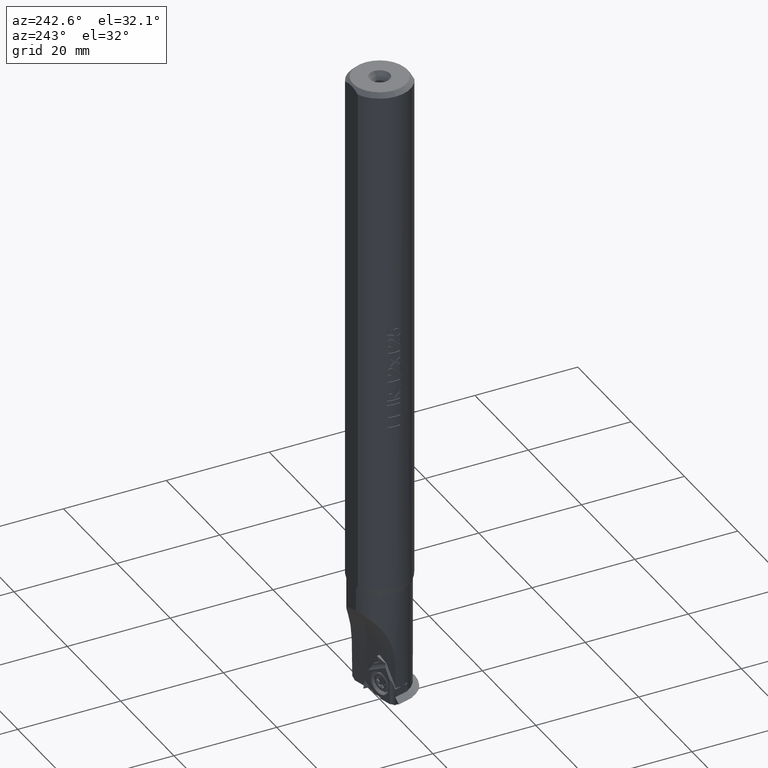
[diagram: clean part render]
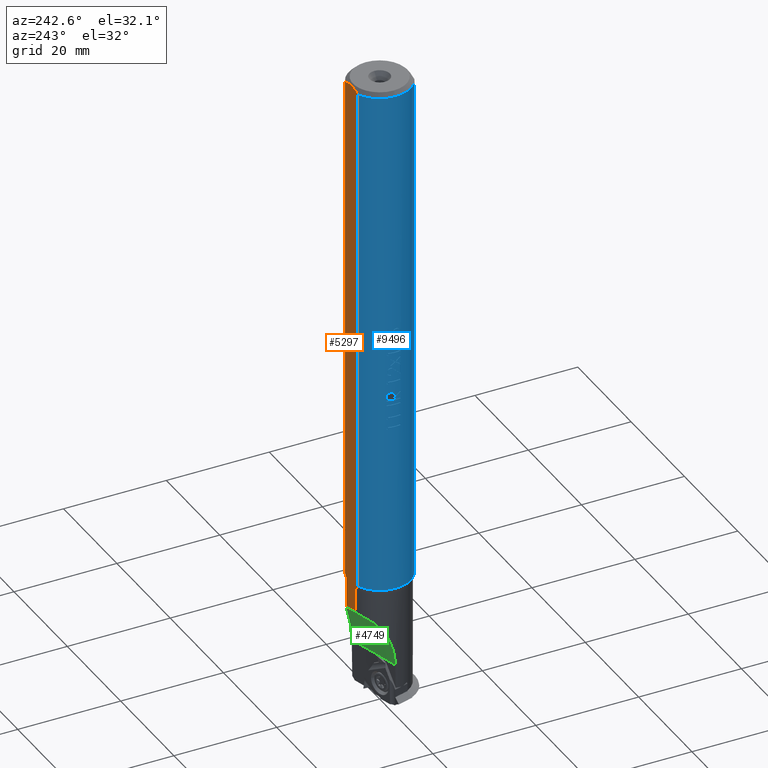
[diagram: same view with three faces highlighted in distinct colors, each labeled with its STEP entity id]
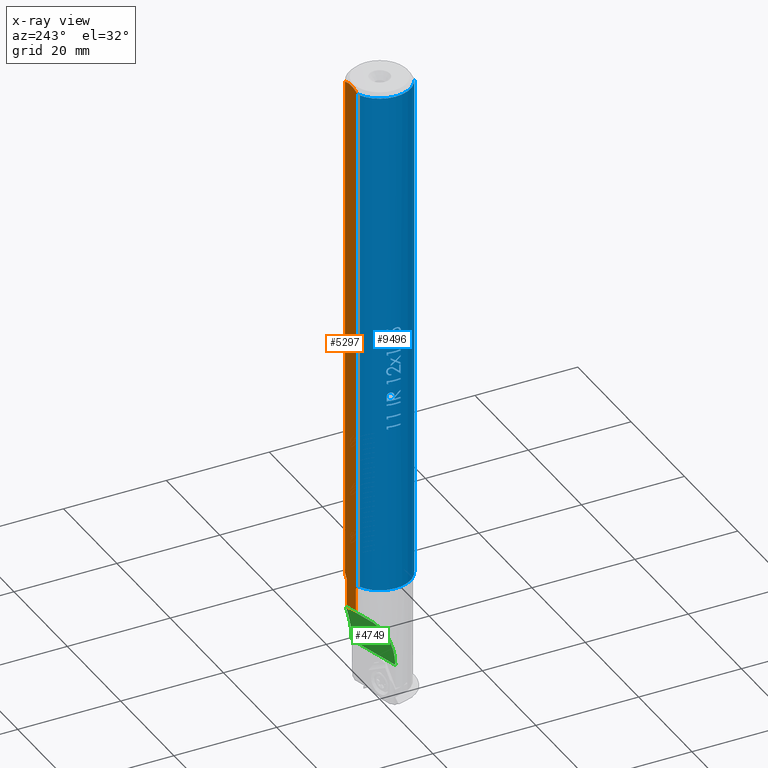
[diagram: x-ray of the same camera — body ghosted, the three highlighted faces saturated]
A machine part, auxiliary view with three faces highlighted in distinct colors.
The next image is the same camera in x-ray (body ghosted, the three faces saturated) — at least one of them is partly hidden behind the body in this view.
Their STEP definitions:

[orange] entity #5297 — the highlighted planar face has unit normal (0, -1, 0).
#11 = VECTOR ( 'NONE', #5029, 1000.000000000000000 ) ;
#129 = LINE ( 'NONE', #7585, #11 ) ;
#328 = DIRECTION ( 'NONE',  ( -1.000000000000000000, -0.000000000000000000, -0.000000000000000000 ) ) ;
#570 = DIRECTION ( 'NONE',  ( 1.000000000000000000, 0.000000000000000000, 0.000000000000000000 ) ) ;
#742 = CARTESIAN_POINT ( 'NONE',  ( -85.34402205602137315, 26.47579512832781035, 29.38891997880249463 ) ) ;
#1091 = CARTESIAN_POINT ( 'NONE',  ( 15.20509743725302521, 26.47579512832781035, 29.60730931851168535 ) ) ;
#1093 = CARTESIAN_POINT ( 'NONE',  ( -85.34402205602137315, 26.47579512832781035, 29.38891997880249463 ) ) ;
#1264 = VECTOR ( 'NONE', #570, 1000.000000000000000 ) ;
#1611 = CARTESIAN_POINT ( 'NONE',  ( 38.85597794395869897, 26.47579512832781035, 33.46388672357584682 ) ) ;
#1634 = CARTESIAN_POINT ( 'NONE',  ( -87.24402205604130245, 26.47579512832781035, 29.38891997879452234 ) ) ;
#1873 = EDGE_CURVE ( 'NONE', #2820, #8694, #129, .T. ) ;
#1937 = CARTESIAN_POINT ( 'NONE',  ( -85.34402205602894753, 26.47579512832780679, 34.18475150202242219 ) ) ;
#2022 = CARTESIAN_POINT ( 'NONE',  ( 14.85597794395958360, 26.47579512832780679, 34.18475150212339742 ) ) ;
#2188 = CARTESIAN_POINT ( 'NONE',  ( 21.32300998174266837, 26.47579512832781035, 33.46388672357584682 ) ) ;
#2482 = EDGE_CURVE ( 'NONE', #8694, #4287, #9737, .T. ) ;
#2490 = VECTOR ( 'NONE', #4115, 1000.000000000000000 ) ;
#2743 = EDGE_CURVE ( 'NONE', #8314, #9858, #14928, .T. ) ;
#2820 = VERTEX_POINT ( 'NONE', #15635 ) ;
#2999 = AXIS2_PLACEMENT_3D ( 'NONE', #5732, #15670, #3238 ) ;
#3238 = DIRECTION ( 'NONE',  ( 0.000000000000000000, -0.000000000000000000, -1.000000000000000000 ) ) ;
#3388 = CARTESIAN_POINT ( 'NONE',  ( -85.83207693008934314, 26.47579512832780679, 32.20230580632823347 ) ) ;
#3563 = PLANE ( 'NONE',  #2999 ) ;
#4051 = B_SPLINE_CURVE_WITH_KNOTS ( 'NONE', 3,
 ( #15098, #15421, #4442, #2022 ),
 .UNSPECIFIED., .F., .F.,
 ( 4, 4 ),
 ( 4.048909997571214572E-15, 0.001232739238025862098 ),
 .UNSPECIFIED. ) ;
#4115 = DIRECTION ( 'NONE',  ( 0.3177123552385703875, 0.000000000000000000, 0.9481871436213213933 ) ) ;
#4287 = VERTEX_POINT ( 'NONE', #1093 ) ;
#4370 = ORIENTED_EDGE ( 'NONE', *, *, #1873, .F. ) ;
#4442 = CARTESIAN_POINT ( 'NONE',  ( 15.20509743724647755, 26.47579512832781035, 33.96636216239430439 ) ) ;
#4462 = VERTEX_POINT ( 'NONE', #4595 ) ;
#4595 = CARTESIAN_POINT ( 'NONE',  ( 14.85597794396124449, 26.47579512832781035, 29.38891997877939133 ) ) ;
#4598 = CARTESIAN_POINT ( 'NONE',  ( -85.62270775365337272, 26.47579512832781035, 33.41011606975370540 ) ) ;
#5029 = DIRECTION ( 'NONE',  ( -1.000000000000000000, -0.000000000000000000, -0.000000000000000000 ) ) ;
#5297 = ADVANCED_FACE ( 'NONE', ( #12146 ), #3563, .F. ) ;
#5732 = CARTESIAN_POINT ( 'NONE',  ( 38.85597794395869897, 26.47579512832781035, 24.11960912024970938 ) ) ;
#6432 = VECTOR ( 'NONE', #328, 1000.000000000000000 ) ;
#6840 = CARTESIAN_POINT ( 'NONE',  ( -85.49756718745771877, 26.47579512833176807, 33.80055502469010520 ) ) ;
#7005 = EDGE_CURVE ( 'NONE', #4287, #4462, #11346, .T. ) ;
#7073 = CARTESIAN_POINT ( 'NONE',  ( -85.79699190025905864, 26.47579512832781035, 30.96727395297827456 ) ) ;
#7201 = DIRECTION ( 'NONE',  ( 1.000000000000000000, 0.000000000000000000, 0.000000000000000000 ) ) ;
#7368 = VERTEX_POINT ( 'NONE', #10924 ) ;
#7387 = ORIENTED_EDGE ( 'NONE', *, *, #7005, .F. ) ;
#7585 = CARTESIAN_POINT ( 'NONE',  ( -87.24402205604130245, 26.47579512832780324, 34.18475150210723257 ) ) ;
#7781 = LINE ( 'NONE', #15235, #1264 ) ;
#7867 = VERTEX_POINT ( 'NONE', #8289 ) ;
#7950 = LINE ( 'NONE', #15085, #2490 ) ;
#8034 = CARTESIAN_POINT ( 'NONE',  ( -85.75272465053279802, 26.47579512832780679, 32.81177822501240371 ) ) ;
#8264 = CARTESIAN_POINT ( 'NONE',  ( -85.84399396855357622, 26.47579512832780679, 31.99464907383267587 ) ) ;
#8289 = CARTESIAN_POINT ( 'NONE',  ( 20.19913940136578390, 26.47579512832781035, 30.10978475732589033 ) ) ;
#8314 = VERTEX_POINT ( 'NONE', #2188 ) ;
#8530 = EDGE_CURVE ( 'NONE', #7867, #8314, #7950, .T. ) ;
#8596 = ORIENTED_EDGE ( 'NONE', *, *, #14327, .F. ) ;
#8694 = VERTEX_POINT ( 'NONE', #12339 ) ;
#9059 = ORIENTED_EDGE ( 'NONE', *, *, #15333, .F. ) ;
#9287 = CARTESIAN_POINT ( 'NONE',  ( 15.85597794397921412, 26.47579512832247772, 30.10978475732750681 ) ) ;
#9377 = CARTESIAN_POINT ( 'NONE',  ( -85.78642583555395618, 26.47579512832781035, 32.61021417963035418 ) ) ;
#9737 = B_SPLINE_CURVE_WITH_KNOTS ( 'NONE', 3,
 ( #1937, #6840, #4598, #8034, #9377, #3388, #8264, #15419, #7073, #11727, #15340, #742 ),
 .UNSPECIFIED., .F., .F.,
 ( 4, 2, 2, 2, 2, 4 ),
 ( 6.801147754004085762E-14, 0.001224598678182342885, 0.001836898017239514290, 0.002449197356296685911, 0.003673796034411049103, 0.004898394712525412295 ),
 .UNSPECIFIED. ) ;
#9858 = VERTEX_POINT ( 'NONE', #11319 ) ;
#10737 = ORIENTED_EDGE ( 'NONE', *, *, #8530, .F. ) ;
#10924 = CARTESIAN_POINT ( 'NONE',  ( 15.85597794397921412, 26.47579512832247772, 30.10978475732750681 ) ) ;
#11319 = CARTESIAN_POINT ( 'NONE',  ( 15.85597794396109705, 26.47579512832781035, 33.46388672357226568 ) ) ;
#11334 = ORIENTED_EDGE ( 'NONE', *, *, #2743, .F. ) ;
#11346 = LINE ( 'NONE', #1634, #12002 ) ;
#11352 = EDGE_LOOP ( 'NONE', ( #15773, #11334, #10737, #8596, #9059, #7387, #11558, #4370 ) ) ;
#11558 = ORIENTED_EDGE ( 'NONE', *, *, #2482, .F. ) ;
#11727 = CARTESIAN_POINT ( 'NONE',  ( -85.62408304662238834, 26.47579512832781390, 30.16824368382136257 ) ) ;
#12002 = VECTOR ( 'NONE', #7201, 1000.000000000000000 ) ;
#12079 = CARTESIAN_POINT ( 'NONE',  ( 14.85597794396124449, 26.47579512832781035, 29.38891997877939133 ) ) ;
#12146 = FACE_OUTER_BOUND ( 'NONE', #11352, .T. ) ;
#12226 = B_SPLINE_CURVE_WITH_KNOTS ( 'NONE', 3,
 ( #12079, #1091, #12754, #9287 ),
 .UNSPECIFIED., .F., .F.,
 ( 4, 4 ),
 ( 6.792295537509356643E-15, 0.001232739238040190697 ),
 .UNSPECIFIED. ) ;
#12339 = CARTESIAN_POINT ( 'NONE',  ( -85.34402205602894753, 26.47579512832780679, 34.18475150202242219 ) ) ;
#12401 = EDGE_CURVE ( 'NONE', #9858, #2820, #4051, .T. ) ;
#12754 = CARTESIAN_POINT ( 'NONE',  ( 15.54288694698197126, 26.47579512832781035, 29.84141586889831999 ) ) ;
#14327 = EDGE_CURVE ( 'NONE', #7368, #7867, #7781, .T. ) ;
#14928 = LINE ( 'NONE', #1611, #6432 ) ;
#15085 = CARTESIAN_POINT ( 'NONE',  ( 20.19913940136578390, 26.47579512832781035, 30.10978475732589033 ) ) ;
#15098 = CARTESIAN_POINT ( 'NONE',  ( 15.85597794396109705, 26.47579512832781035, 33.46388672357226568 ) ) ;
#15235 = CARTESIAN_POINT ( 'NONE',  ( 38.85597794395869897, 26.47579512832781035, 30.10978475732587967 ) ) ;
#15333 = EDGE_CURVE ( 'NONE', #4462, #7368, #12226, .T. ) ;
#15340 = CARTESIAN_POINT ( 'NONE',  ( -85.49774328179445604, 26.47579512832781035, 29.77355707470505664 ) ) ;
#15419 = CARTESIAN_POINT ( 'NONE',  ( -85.84407807963010839, 26.47579512832781035, 31.37344316831364921 ) ) ;
#15421 = CARTESIAN_POINT ( 'NONE',  ( 15.54288694697822493, 26.47579512832781035, 33.73225561200582234 ) ) ;
#15635 = CARTESIAN_POINT ( 'NONE',  ( 14.85597794395958360, 26.47579512832780679, 34.18475150212339742 ) ) ;
#15670 = DIRECTION ( 'NONE',  ( 0.000000000000000000, -1.000000000000000000, 0.000000000000000000 ) ) ;
#15773 = ORIENTED_EDGE ( 'NONE', *, *, #12401, .F. ) ;

[blue] entity #9496 — the highlighted cylindrical surface (edge-blend (fillet) strip) has radius 6 mm, axis along (-0, -0, 1).
#5 = CARTESIAN_POINT ( 'NONE',  ( -37.03878342229934617, 20.26593512284609133, 25.82882700809841126 ) ) ;
#17 = CARTESIAN_POINT ( 'NONE',  ( -30.40373226519881555, 21.85644601230084305, 25.85162997337219437 ) ) ;
#19 = DIRECTION ( 'NONE',  ( -1.000000000000000000, -0.000000000000000000, -0.000000000000000000 ) ) ;
#24 = CARTESIAN_POINT ( 'NONE',  ( -27.42030410732335000, 19.97579512832780679, 25.87075595735126043 ) ) ;
#54 = CARTESIAN_POINT ( 'NONE',  ( -36.58446574726461620, 20.45510480929132058, 25.80877323998568684 ) ) ;
#112 = CARTESIAN_POINT ( 'NONE',  ( -32.33884043210967718, 19.97579512832780679, 25.87075595735126043 ) ) ;
#122 = ORIENTED_EDGE ( 'NONE', *, *, #3739, .T. ) ;
#131 = CIRCLE ( 'NONE', #11150, 5.999999999999991118 ) ;
#135 = DIRECTION ( 'NONE',  ( -1.000000000000000000, -0.000000000000000000, -0.000000000000000000 ) ) ;
#141 = CARTESIAN_POINT ( 'NONE',  ( -29.16080483151806391, 22.57987444959073287, 26.00504526155094354 ) ) ;
#154 = CARTESIAN_POINT ( 'NONE',  ( -29.89266719986574827, 21.30928210125803801, 25.79473737526099697 ) ) ;
#167 = CARTESIAN_POINT ( 'NONE',  ( 14.85597794395870963, 20.97579512832781035, 31.78683574045086502 ) ) ;
#182 = FACE_BOUND ( 'NONE', #4727, .T. ) ;
#200 = VERTEX_POINT ( 'NONE', #8046 ) ;
#202 = ORIENTED_EDGE ( 'NONE', *, *, #14111, .T. ) ;
#236 = EDGE_CURVE ( 'NONE', #577, #886, #7325, .T. ) ;
#238 = VERTEX_POINT ( 'NONE', #8443 ) ;
#278 = CARTESIAN_POINT ( 'NONE',  ( -24.31123793478061401, 21.19694897448165705, 25.79091287767725760 ) ) ;
#286 = EDGE_CURVE ( 'NONE', #9874, #3172, #11597, .T. ) ;
#304 = EDGE_CURVE ( 'NONE', #7835, #1892, #3084, .T. ) ;
#305 = LINE ( 'NONE', #4078, #12766 ) ;
#309 = CARTESIAN_POINT ( 'NONE',  ( -30.88827886837956882, 21.61299315559460865, 25.81323150970053248 ) ) ;
#321 = EDGE_CURVE ( 'NONE', #10850, #5927, #3864, .T. ) ;
#329 = CARTESIAN_POINT ( 'NONE',  ( -31.31591208007976235, 21.01409390637267904, 25.78695797472928319 ) ) ;
#355 = VERTEX_POINT ( 'NONE', #2674 ) ;
#368 = VERTEX_POINT ( 'NONE', #11098 ) ;
#384 = CARTESIAN_POINT ( 'NONE',  ( -31.10174394708829482, 21.31403584387069117, 25.78887258201616461 ) ) ;
#418 = CARTESIAN_POINT ( 'NONE',  ( -38.27357019394288784, 20.77871805082395440, 25.78975739951865975 ) ) ;
#420 = CARTESIAN_POINT ( 'NONE',  ( -30.16790026116949974, 21.88172795418251582, 25.85562290368309490 ) ) ;
#436 = CIRCLE ( 'NONE', #11455, 5.999999999999991118 ) ;
#475 = AXIS2_PLACEMENT_3D ( 'NONE', #10823, #7052, #14429 ) ;
#476 = CARTESIAN_POINT ( 'NONE',  ( -24.31123793478061401, 21.19694897448165705, 25.79091287767725760 ) ) ;
#490 = CARTESIAN_POINT ( 'NONE',  ( -31.29014439852625173, 21.44549022851877496, 25.80067777221319147 ) ) ;
#548 = ORIENTED_EDGE ( 'NONE', *, *, #1217, .T. ) ;
#560 = B_SPLINE_CURVE_WITH_KNOTS ( 'NONE', 3,
 ( #11412, #418, #4124, #13885, #5405, #15172, #14055, #7797, #9065, #13966, #2982, #7069 ),
 .UNSPECIFIED., .F., .F.,
 ( 4, 2, 2, 2, 2, 4 ),
 ( 0.000000000000000000, 0.0001820085341291748863, 0.0003640170682583497726, 0.0007280341365167004126, 0.001092051204775050998, 0.001456068273033401693 ),
 .UNSPECIFIED. ) ;
#577 = VERTEX_POINT ( 'NONE', #15047 ) ;
#580 = EDGE_CURVE ( 'NONE', #3641, #1837, #12120, .T. ) ;
#582 = EDGE_CURVE ( 'NONE', #6521, #15871, #305, .T. ) ;
#594 = CARTESIAN_POINT ( 'NONE',  ( -38.03406383141987135, 20.76105799676029662, 25.79052193414473493 ) ) ;
#596 = CARTESIAN_POINT ( 'NONE',  ( -29.21381466845058483, 22.30052610751131326, 25.93461625652962610 ) ) ;
#620 = CARTESIAN_POINT ( 'NONE',  ( -20.19514385091308739, 20.97579512832781035, 31.78683574045086502 ) ) ;
#637 =( BOUNDED_CURVE ( )  B_SPLINE_CURVE ( 3, ( #9745, #7507, #1336, #14802 ),
 .UNSPECIFIED., .F., .F. ) 
 B_SPLINE_CURVE_WITH_KNOTS ( ( 4, 4 ),
 ( 4.943518995334713395, 4.990256464299189787 ),
 .UNSPECIFIED. ) 
 CURVE ( )  GEOMETRIC_REPRESENTATION_ITEM ( )  RATIONAL_B_SPLINE_CURVE ( ( 1.000000000000000000, 0.9998179757000473789, 0.9998179757000473789, 1.000000000000000000 ) ) 
 REPRESENTATION_ITEM ( '' )  );
#642 = CARTESIAN_POINT ( 'NONE',  ( -30.85744937308189506, 19.97579512832780679, 25.87075595735126399 ) ) ;
#648 = EDGE_CURVE ( 'NONE', #15558, #368, #1260, .T. ) ;
#694 = EDGE_CURVE ( 'NONE', #14536, #11016, #4549, .T. ) ;
#752 = VECTOR ( 'NONE', #982, 1000.000000000000000 ) ;
#784 = CARTESIAN_POINT ( 'NONE',  ( -27.01325282527206184, 22.35026094029361943, 25.94638680807100783 ) ) ;
#785 = VECTOR ( 'NONE', #7858, 1000.000000000000000 ) ;
#787 = DIRECTION ( 'NONE',  ( 1.000000000000000000, 0.000000000000000000, 0.000000000000000000 ) ) ;
#809 = EDGE_CURVE ( 'NONE', #4947, #10906, #9943, .T. ) ;
#810 = CARTESIAN_POINT ( 'NONE',  ( -31.84664223129500371, 20.66600004987106232, 25.78473600123757947 ) ) ;
#812 = CARTESIAN_POINT ( 'NONE',  ( -87.24402205604130245, 19.97579512832780679, 25.87075595735126043 ) ) ;
#826 = CARTESIAN_POINT ( 'NONE',  ( -85.34402205602309266, 15.47579512832781035, 29.38891997880680762 ) ) ;
#828 = CARTESIAN_POINT ( 'NONE',  ( -29.39467831522120989, 22.39054936922894967, 25.95599570799558009 ) ) ;
#866 = CARTESIAN_POINT ( 'NONE',  ( -34.83659689736307996, 21.96807836076381193, 25.86897352728135502 ) ) ;
#870 = CARTESIAN_POINT ( 'NONE',  ( -30.30763794101997277, 22.30316766670351925, 25.93469342044347314 ) ) ;
#874 = EDGE_CURVE ( 'NONE', #15871, #9021, #637, .T. ) ;
#886 = VERTEX_POINT ( 'NONE', #12395 ) ;
#890 = EDGE_CURVE ( 'NONE', #12639, #1119, #15394, .T. ) ;
#904 = CARTESIAN_POINT ( 'NONE',  ( -35.50196810304984041, 21.07080547822097216, 25.78758803482867989 ) ) ;
#914 = EDGE_CURVE ( 'NONE', #1687, #1478, #11301, .T. ) ;
#921 = EDGE_CURVE ( 'NONE', #11679, #10773, #12707, .T. ) ;
#923 = CARTESIAN_POINT ( 'NONE',  ( -24.34322839371710145, 20.78788395367525865, 25.77582490794368653 ) ) ;
#953 = CARTESIAN_POINT ( 'NONE',  ( -35.70443371469514204, 20.95367223169319715, 25.78687652580245881 ) ) ;
#964 = CARTESIAN_POINT ( 'NONE',  ( -31.59840990994086596, 21.01409390637267904, 25.78695797472929030 ) ) ;
#982 = DIRECTION ( 'NONE',  ( 1.000000000000000000, 0.000000000000000000, 0.000000000000000000 ) ) ;
#995 = CARTESIAN_POINT ( 'NONE',  ( -34.99520654091971039, 22.57987444959068668, 26.00504526155092933 ) ) ;
#996 = CARTESIAN_POINT ( 'NONE',  ( -35.92424721433285839, 21.56983199302935006, 25.81583074244275267 ) ) ;
#999 = VECTOR ( 'NONE', #1004, 1000.000000000000000 ) ;
#1004 = DIRECTION ( 'NONE',  ( 1.000000000000000000, 0.000000000000000000, 0.000000000000000000 ) ) ;
#1029 = DIRECTION ( 'NONE',  ( 0.000000000000000000, 0.000000000000000000, 1.000000000000000000 ) ) ;
#1050 = LINE ( 'NONE', #6188, #5921 ) ;
#1051 = CARTESIAN_POINT ( 'NONE',  ( -25.28328487655410939, 19.97579512832780679, 25.87075595735126043 ) ) ;
#1079 = CARTESIAN_POINT ( 'NONE',  ( -34.61973714317983308, 22.08810971714762772, 25.89058961278804105 ) ) ;
#1080 = CARTESIAN_POINT ( 'NONE',  ( -29.87003200529344227, 20.95367223169319715, 25.78687652580245881 ) ) ;
#1093 = CARTESIAN_POINT ( 'NONE',  ( -85.34402205602137315, 26.47579512832781035, 29.38891997880249463 ) ) ;
#1108 = CARTESIAN_POINT ( 'NONE',  ( -28.64145795347719670, 19.97579512832780679, 25.87075595735126043 ) ) ;
#1112 = CARTESIAN_POINT ( 'NONE',  ( -87.24402205604130245, 20.65421393174661091, 25.79545981049910708 ) ) ;
#1119 = VERTEX_POINT ( 'NONE', #2676 ) ;
#1143 = CARTESIAN_POINT ( 'NONE',  ( -36.11882314888021739, 21.45921320766354157, 25.80584879816689536 ) ) ;
#1147 = CARTESIAN_POINT ( 'NONE',  ( -38.24023863189601258, 21.11957663341864588, 25.78832910761874686 ) ) ;
#1189 = ORIENTED_EDGE ( 'NONE', *, *, #236, .T. ) ;
#1207 = CARTESIAN_POINT ( 'NONE',  ( -30.08984550493120480, 21.56983199302937848, 25.81583074244274556 ) ) ;
#1217 = EDGE_CURVE ( 'NONE', #355, #7209, #12611, .T. ) ;
#1221 = DIRECTION ( 'NONE',  ( -1.000000000000000000, -0.000000000000000000, -0.000000000000000000 ) ) ;
#1260 = CIRCLE ( 'NONE', #5605, 5.999999999999991118 ) ;
#1285 = EDGE_CURVE ( 'NONE', #9021, #8788, #4270, .T. ) ;
#1303 = CARTESIAN_POINT ( 'NONE',  ( -22.90881906458830386, 20.97579512832781035, 31.78683574045086502 ) ) ;
#1321 = CIRCLE ( 'NONE', #14108, 5.999999999999991118 ) ;
#1336 = CARTESIAN_POINT ( 'NONE',  ( -32.95150349638389997, 22.53173079829901226, 25.99133719884860483 ) ) ;
#1375 = CARTESIAN_POINT ( 'NONE',  ( -35.57644101675814596, 22.40638940673798629, 25.95982155340813335 ) ) ;
#1387 = DIRECTION ( 'NONE',  ( -1.000000000000000000, -0.000000000000000000, -0.000000000000000000 ) ) ;
#1395 = LINE ( 'NONE', #9970, #14264 ) ;
#1420 = VERTEX_POINT ( 'NONE', #2584 ) ;
#1421 = CARTESIAN_POINT ( 'NONE',  ( -29.37534611674693252, 22.66304544800429355, 26.02894412386928025 ) ) ;
#1447 = CARTESIAN_POINT ( 'NONE',  ( -30.57495154322078079, 19.97579512832780679, 25.87075595735125688 ) ) ;
#1456 = EDGE_CURVE ( 'NONE', #7733, #9874, #7054, .T. ) ;
#1457 = ORIENTED_EDGE ( 'NONE', *, *, #809, .T. ) ;
#1458 = B_SPLINE_CURVE_WITH_KNOTS ( 'NONE', 3,
 ( #14294, #9381, #15657, #4681, #4601, #5795, #12211, #4841, #11888, #1147, #7317, #15493, #9546, #14450 ),
 .UNSPECIFIED., .F., .F.,
 ( 4, 2, 2, 2, 2, 2, 4 ),
 ( 0.000000000000000000, 0.0001676069727286322558, 0.0003352139454572645116, 0.0006704278909145098327, 0.001005641836371755100, 0.001173248809100377842, 0.001340855781829000583 ),
 .UNSPECIFIED. ) ;
#1478 = VERTEX_POINT ( 'NONE', #11321 ) ;
#1519 = CARTESIAN_POINT ( 'NONE',  ( -36.78248359450282123, 20.65421393174661091, 25.79545981049910708 ) ) ;
#1540 = CARTESIAN_POINT ( 'NONE',  ( -30.95921219359470911, 21.90928871807140510, 25.85989810640176856 ) ) ;
#1613 = VERTEX_POINT ( 'NONE', #2962 ) ;
#1622 = VERTEX_POINT ( 'NONE', #3940 ) ;
#1625 = CARTESIAN_POINT ( 'NONE',  ( -87.24402205604130245, 15.47579512832781390, 29.38891997879452234 ) ) ;
#1628 = VECTOR ( 'NONE', #2264, 1000.000000000000000 ) ;
#1633 = CARTESIAN_POINT ( 'NONE',  ( -24.86568536718471734, 21.28206516759647471, 25.79433982683443460 ) ) ;
#1634 = CARTESIAN_POINT ( 'NONE',  ( -87.24402205604130245, 26.47579512832781035, 29.38891997879452234 ) ) ;
#1650 = DIRECTION ( 'NONE',  ( 0.000000000000000000, 0.000000000000000000, 1.000000000000000000 ) ) ;
#1687 = VERTEX_POINT ( 'NONE', #10639 ) ;
#1719 = B_SPLINE_CURVE_WITH_KNOTS ( 'NONE', 3,
 ( #15661, #3314, #10613, #7003, #14455, #14300, #3230, #8113, #12062, #3556, #4686, #11969, #13256, #12140 ),
 .UNSPECIFIED., .F., .F.,
 ( 4, 2, 2, 2, 2, 2, 4 ),
 ( 0.000000000000000000, 0.0001577204658253200231, 0.0003154409316506400461, 0.0006308818633012597092, 0.0009463227949518795892, 0.001104043260777179663, 0.001261763726602479953 ),
 .UNSPECIFIED. ) ;
#1737 = VECTOR ( 'NONE', #13003, 1000.000000000000000 ) ;
#1769 = LINE ( 'NONE', #10027, #785 ) ;
#1795 = CARTESIAN_POINT ( 'NONE',  ( -38.01853414249578123, 20.67416041757489609, 25.79426468950449802 ) ) ;
#1799 = ORIENTED_EDGE ( 'NONE', *, *, #11622, .T. ) ;
#1800 = CARTESIAN_POINT ( 'NONE',  ( -23.82468444920368711, 21.19694897448165705, 25.79091287767725760 ) ) ;
#1831 = VERTEX_POINT ( 'NONE', #8623 ) ;
#1837 = VERTEX_POINT ( 'NONE', #2391 ) ;
#1851 = CARTESIAN_POINT ( 'NONE',  ( -31.78973117416260408, 21.67825488679742563, 25.82351024241123483 ) ) ;
#1852 = ORIENTED_EDGE ( 'NONE', *, *, #1456, .T. ) ;
#1877 = CARTESIAN_POINT ( 'NONE',  ( -28.64145795347719670, 19.97579512832780679, 25.87075595735126043 ) ) ;
#1892 = VERTEX_POINT ( 'NONE', #9903 ) ;
#1904 = DIRECTION ( 'NONE',  ( 1.000000000000000000, 0.000000000000000000, 0.000000000000000000 ) ) ;
#1906 = ORIENTED_EDGE ( 'NONE', *, *, #13877, .T. ) ;
#1961 = ORIENTED_EDGE ( 'NONE', *, *, #914, .T. ) ;
#1976 = VECTOR ( 'NONE', #4712, 1000.000000000000000 ) ;
#1980 = AXIS2_PLACEMENT_3D ( 'NONE', #167, #19, #2585 ) ;
#2025 = CARTESIAN_POINT ( 'NONE',  ( -29.43384551607071131, 22.40132078789302383, 25.95863477062266966 ) ) ;
#2027 = CARTESIAN_POINT ( 'NONE',  ( -34.81503201919937140, 20.33774248791360861, 25.80957568716292272 ) ) ;
#2053 = EDGE_CURVE ( 'NONE', #12531, #4947, #5812, .T. ) ;
#2066 = CARTESIAN_POINT ( 'NONE',  ( -35.38773394094585711, 22.41704318080382663, 25.96250700291101055 ) ) ;
#2070 = CARTESIAN_POINT ( 'NONE',  ( -30.40534684236607887, 21.90292854178934689, 25.85889987426244474 ) ) ;
#2086 = CARTESIAN_POINT ( 'NONE',  ( -32.09407507601103759, 20.31902729196218260, 25.81273913266020870 ) ) ;
#2109 = CARTESIAN_POINT ( 'NONE',  ( -35.38199828926403967, 22.68817956550589443, 26.03637998865191605 ) ) ;
#2128 = VERTEX_POINT ( 'NONE', #3329 ) ;
#2191 = CARTESIAN_POINT ( 'NONE',  ( -29.64867909080065189, 20.71743249188624247, 25.78774758294763814 ) ) ;
#2229 = B_SPLINE_CURVE_WITH_KNOTS ( 'NONE', 3,
 ( #5077, #2666, #12292, #9956, #11088, #14855, #3951, #12525, #3878, #11010, #8749, #13643 ),
 .UNSPECIFIED., .F., .F.,
 ( 4, 2, 2, 2, 2, 4 ),
 ( 0.000000000000000000, 0.0001201840835565692157, 0.0002403681671131384313, 0.0004807363342262768627, 0.0007211045013394152669, 0.0009614726684525537253 ),
 .UNSPECIFIED. ) ;
#2236 = CARTESIAN_POINT ( 'NONE',  ( -30.57495154322078079, 19.97579512832780679, 25.87075595735125688 ) ) ;
#2253 = AXIS2_PLACEMENT_3D ( 'NONE', #1303, #1221, #8815 ) ;
#2255 = AXIS2_PLACEMENT_3D ( 'NONE', #2832, #1387, #6290 ) ;
#2263 = CARTESIAN_POINT ( 'NONE',  ( -87.24402205604130245, 21.19694897448165705, 25.79091287767725760 ) ) ;
#2264 = DIRECTION ( 'NONE',  ( 1.000000000000000000, 0.000000000000000000, 0.000000000000000000 ) ) ;
#2266 = VECTOR ( 'NONE', #8576, 1000.000000000000000 ) ;
#2279 = CARTESIAN_POINT ( 'NONE',  ( -35.20974782614861454, 22.66304544800428999, 26.02894412386928380 ) ) ;
#2289 = DIRECTION ( 'NONE',  ( -1.000000000000000000, -0.000000000000000000, -0.000000000000000000 ) ) ;
#2292 = DIRECTION ( 'NONE',  ( 0.000000000000000000, 0.000000000000000000, 1.000000000000000000 ) ) ;
#2319 = CARTESIAN_POINT ( 'NONE',  ( -35.26824722547242175, 22.40132078789304870, 25.95863477062268387 ) ) ;
#2325 = B_SPLINE_CURVE_WITH_KNOTS ( 'NONE', 3,
 ( #6845, #5722, #15495, #2025, #828, #5413, #596, #7805, #11501, #2918, #4367, #7886 ),
 .UNSPECIFIED., .F., .F.,
 ( 4, 2, 2, 2, 2, 4 ),
 ( 0.000000000000000000, 0.0001205092753200970237, 0.0002410185506401940473, 0.0004820371012803889620, 0.0007230556519205839309, 0.0009640742025607787914 ),
 .UNSPECIFIED. ) ;
#2352 = CARTESIAN_POINT ( 'NONE',  ( -30.38720512484106351, 21.71896679586853907, 25.83286212407377747 ) ) ;
#2355 = CARTESIAN_POINT ( 'NONE',  ( -36.23813397460050822, 21.85644601230083950, 25.85162997337218016 ) ) ;
#2367 = CARTESIAN_POINT ( 'NONE',  ( -37.37230698303833520, 21.70347437769862609, 25.83112411002611353 ) ) ;
#2379 = CARTESIAN_POINT ( 'NONE',  ( -24.21697584582138063, 22.62129475108131871, 26.01688503772022543 ) ) ;
#2387 = CARTESIAN_POINT ( 'NONE',  ( -36.73088583561836629, 20.19059021649052710, 25.83801450961281176 ) ) ;
#2390 = CARTESIAN_POINT ( 'NONE',  ( -36.00230197057121018, 21.88172795418251582, 25.85562290368309490 ) ) ;
#2391 = CARTESIAN_POINT ( 'NONE',  ( -31.59840990994086596, 21.01409390637267904, 25.78695797472929030 ) ) ;
#2405 = CARTESIAN_POINT ( 'NONE',  ( -28.77090458405791651, 22.03339306803555786, 25.88051058428886719 ) ) ;
#2410 = CARTESIAN_POINT ( 'NONE',  ( -36.81640453467377228, 21.29871179499447464, 25.79553163980726538 ) ) ;
#2415 = CARTESIAN_POINT ( 'NONE',  ( -30.13660140270863863, 21.68316383103677225, 25.82855791551323676 ) ) ;
#2417 = CARTESIAN_POINT ( 'NONE',  ( -37.22995513134117118, 20.19043485701753937, 25.83841632543235178 ) ) ;
#2421 = EDGE_LOOP ( 'NONE', ( #5225, #11800, #2950, #9237, #13096, #12411, #6008, #10612, #4401, #13119, #6214, #14743 ) ) ;
#2434 = CARTESIAN_POINT ( 'NONE',  ( -87.24402205604130245, 21.90928871807140510, 25.85989810640176856 ) ) ;
#2439 = ORIENTED_EDGE ( 'NONE', *, *, #7474, .T. ) ;
#2459 = DIRECTION ( 'NONE',  ( 0.000000000000000000, 0.000000000000000000, 1.000000000000000000 ) ) ;
#2468 = CARTESIAN_POINT ( 'NONE',  ( -37.13070324594514204, 21.65435165209917656, 25.82532913187890244 ) ) ;
#2480 = VECTOR ( 'NONE', #4131, 1000.000000000000000 ) ;
#2508 = CARTESIAN_POINT ( 'NONE',  ( -29.60608468958830741, 22.68947034200302681, 26.03676467462610233 ) ) ;
#2514 = CARTESIAN_POINT ( 'NONE',  ( -27.16854712949215411, 22.62162846166114605, 26.01698022762485252 ) ) ;
#2518 =( BOUNDED_CURVE ( )  B_SPLINE_CURVE ( 3, ( #784, #4102, #12591, #2813 ),
 .UNSPECIFIED., .F., .F. ) 
 B_SPLINE_CURVE_WITH_KNOTS ( ( 4, 4 ),
 ( 4.943518995334713395, 4.990256464299189787 ),
 .UNSPECIFIED. ) 
 CURVE ( )  GEOMETRIC_REPRESENTATION_ITEM ( )  RATIONAL_B_SPLINE_CURVE ( ( 1.000000000000000000, 0.9998179757000473789, 0.9998179757000473789, 1.000000000000000000 ) ) 
 REPRESENTATION_ITEM ( '' )  );
#2579 = ORIENTED_EDGE ( 'NONE', *, *, #15710, .T. ) ;
#2584 = CARTESIAN_POINT ( 'NONE',  ( -18.15988744065667859, 22.35026094029361943, 25.94638680807100428 ) ) ;
#2585 = DIRECTION ( 'NONE',  ( 0.000000000000000000, 0.000000000000000000, 1.000000000000000000 ) ) ;
#2599 = FACE_BOUND ( 'NONE', #7641, .T. ) ;
#2610 = CARTESIAN_POINT ( 'NONE',  ( -24.42374892798417818, 21.19827692573187150, 25.79096185788151274 ) ) ;
#2614 = VERTEX_POINT ( 'NONE', #5557 ) ;
#2654 = EDGE_CURVE ( 'NONE', #3915, #200, #11271, .T. ) ;
#2666 = CARTESIAN_POINT ( 'NONE',  ( -38.03660671196657006, 20.89089590765893334, 25.78729915015113860 ) ) ;
#2674 = CARTESIAN_POINT ( 'NONE',  ( 14.85597794396622362, 15.47579512832781035, 29.38891997878251416 ) ) ;
#2676 = CARTESIAN_POINT ( 'NONE',  ( -17.90813046282547916, 22.62162846166114605, 26.01698022762484896 ) ) ;
#2677 = EDGE_CURVE ( 'NONE', #5927, #6979, #3215, .T. ) ;
#2684 = CARTESIAN_POINT ( 'NONE',  ( -24.53583792400097963, 21.20380307911764817, 25.79113361723496922 ) ) ;
#2686 = VERTEX_POINT ( 'NONE', #1447 ) ;
#2699 =( BOUNDED_CURVE ( )  B_SPLINE_CURVE ( 3, ( #953, #6095, #9519, #7373 ),
 .UNSPECIFIED., .F., .F. ) 
 B_SPLINE_CURVE_WITH_KNOTS ( ( 4, 4 ),
 ( 1.574483484588560245, 1.692535555300399119 ),
 .UNSPECIFIED. ) 
 CURVE ( )  GEOMETRIC_REPRESENTATION_ITEM ( )  RATIONAL_B_SPLINE_CURVE ( ( 1.000000000000000000, 0.9988389795321085396, 0.9988389795321085396, 1.000000000000000000 ) ) 
 REPRESENTATION_ITEM ( '' )  );
#2705 = ORIENTED_EDGE ( 'NONE', *, *, #3773, .T. ) ;
#2724 = CARTESIAN_POINT ( 'NONE',  ( -29.94126677404820924, 22.31501404375672593, 25.93798715102930075 ) ) ;
#2727 = EDGE_CURVE ( 'NONE', #1119, #15313, #1769, .T. ) ;
#2738 = CARTESIAN_POINT ( 'NONE',  ( -22.67137248339172473, 19.97579512832780679, 25.87075595735126043 ) ) ;
#2766 = CARTESIAN_POINT ( 'NONE',  ( -31.65791687656675890, 20.53415478810290651, 25.79647908997345596 ) ) ;
#2787 = AXIS2_PLACEMENT_3D ( 'NONE', #9826, #9653, #2459 ) ;
#2790 = VECTOR ( 'NONE', #7787, 1000.000000000000000 ) ;
#2813 = CARTESIAN_POINT ( 'NONE',  ( -27.16854712949215411, 22.62162846166114605, 26.01698022762485252 ) ) ;
#2819 = CARTESIAN_POINT ( 'NONE',  ( -27.01325282527206184, 22.35026094029361943, 25.94638680807100783 ) ) ;
#2824 = CARTESIAN_POINT ( 'NONE',  ( -24.61792219050725450, 22.60583279762899522, 26.01245968209933324 ) ) ;
#2832 = CARTESIAN_POINT ( 'NONE',  ( -87.24402205604130245, 20.97579512832781035, 31.78683574045086502 ) ) ;
#2843 = CARTESIAN_POINT ( 'NONE',  ( -87.24402205604130245, 20.24716264969533341, 25.83124217548341051 ) ) ;
#2845 = ORIENTED_EDGE ( 'NONE', *, *, #15825, .T. ) ;
#2869 = ORIENTED_EDGE ( 'NONE', *, *, #12127, .T. ) ;
#2878 = DIRECTION ( 'NONE',  ( -1.000000000000000000, -0.000000000000000000, -0.000000000000000000 ) ) ;
#2892 = EDGE_CURVE ( 'NONE', #368, #6502, #1050, .T. ) ;
#2916 = DIRECTION ( 'NONE',  ( 0.000000000000000000, 0.000000000000000000, 1.000000000000000000 ) ) ;
#2918 = CARTESIAN_POINT ( 'NONE',  ( -29.00219518796135887, 21.96807836076380838, 25.86897352728135147 ) ) ;
#2950 = ORIENTED_EDGE ( 'NONE', *, *, #13004, .T. ) ;
#2962 = CARTESIAN_POINT ( 'NONE',  ( -24.71616915807121018, 22.58558746272951723, 26.00682115222521062 ) ) ;
#2982 = CARTESIAN_POINT ( 'NONE',  ( -37.47603615048498682, 19.90907477603803599, 25.88242137584363434 ) ) ;
#2988 = CARTESIAN_POINT ( 'NONE',  ( -38.00666800923016098, 20.63197988694261298, 25.79655558301362106 ) ) ;
#3011 = VECTOR ( 'NONE', #4632, 1000.000000000000000 ) ;
#3044 = CARTESIAN_POINT ( 'NONE',  ( -24.96200229094982603, 20.37941294579360729, 25.80253209420816418 ) ) ;
#3084 = B_SPLINE_CURVE_WITH_KNOTS ( 'NONE', 3,
 ( #10855, #9554, #3717, #7083, #11972, #9721, #14538, #2367, #7409, #12303 ),
 .UNSPECIFIED., .F., .F.,
 ( 4, 3, 3, 4 ),
 ( 0.000000000000000000, 0.0001081355637505219529, 0.0002119720375891837418, 0.0003170524889804133021 ),
 .UNSPECIFIED. ) ;
#3104 = CARTESIAN_POINT ( 'NONE',  ( -87.24402205604130245, 19.97579512832780679, 25.87075595735126043 ) ) ;
#3114 = LINE ( 'NONE', #12818, #7211 ) ;
#3172 = VERTEX_POINT ( 'NONE', #12582 ) ;
#3189 = CARTESIAN_POINT ( 'NONE',  ( -87.24402205604130245, 21.80752589755857684, 25.84476338078419388 ) ) ;
#3212 = ORIENTED_EDGE ( 'NONE', *, *, #7272, .T. ) ;
#3215 = B_SPLINE_CURVE_WITH_KNOTS ( 'NONE', 3,
 ( #7478, #4920, #9794, #14692, #4993, #3704, #12367, #1375, #6278, #8746 ),
 .UNSPECIFIED., .F., .F.,
 ( 4, 2, 2, 2, 4 ),
 ( 0.000000000000000000, 0.0002181190468126104997, 0.0004362380936252209995, 0.0006543571404378314450, 0.0008724761872504419990 ),
 .UNSPECIFIED. ) ;
#3226 = CARTESIAN_POINT ( 'NONE',  ( -38.03635535066784001, 20.80582499172659894, 25.78907859562557903 ) ) ;
#3230 = CARTESIAN_POINT ( 'NONE',  ( -35.93790188453420598, 22.53872637621579855, 25.99346602034963638 ) ) ;
#3231 = VERTEX_POINT ( 'NONE', #6885 ) ;
#3305 = EDGE_CURVE ( 'NONE', #6678, #13374, #10006, .T. ) ;
#3314 = CARTESIAN_POINT ( 'NONE',  ( -35.49352822446315514, 22.68822859730616770, 26.03639460144190210 ) ) ;
#3329 = CARTESIAN_POINT ( 'NONE',  ( -24.01760979642590499, 21.19694897448165705, 25.79091287767725760 ) ) ;
#3398 = CARTESIAN_POINT ( 'NONE',  ( -35.50196810304984041, 21.07080547822097216, 25.78758803482867989 ) ) ;
#3437 = CARTESIAN_POINT ( 'NONE',  ( -87.24402205604130245, 19.97579512832780679, 25.87075595735126043 ) ) ;
#3438 = ORIENTED_EDGE ( 'NONE', *, *, #12329, .T. ) ;
#3475 = CARTESIAN_POINT ( 'NONE',  ( -35.99859874181420594, 21.80047790681673447, 25.84364826041726104 ) ) ;
#3505 = CARTESIAN_POINT ( 'NONE',  ( -27.65775068851992913, 20.97579512832781035, 31.78683574045086502 ) ) ;
#3531 = CARTESIAN_POINT ( 'NONE',  ( -22.67137248339172473, 20.97579512832781035, 31.78683574045086502 ) ) ;
#3532 = CARTESIAN_POINT ( 'NONE',  ( -20.19514385091308739, 19.97579512832780679, 25.87075595735126043 ) ) ;
#3556 = CARTESIAN_POINT ( 'NONE',  ( -36.20129983269487894, 22.16017472632387708, 25.90469184003798730 ) ) ;
#3559 = CARTESIAN_POINT ( 'NONE',  ( -35.61526163612785467, 21.18907128616275415, 25.78946101563298399 ) ) ;
#3562 = CIRCLE ( 'NONE', #475, 5.999999999999991118 ) ;
#3570 = VERTEX_POINT ( 'NONE', #7482 ) ;
#3582 = CARTESIAN_POINT ( 'NONE',  ( -20.43259043210966652, 22.62162846166114605, 26.01698022762484896 ) ) ;
#3607 = CARTESIAN_POINT ( 'NONE',  ( -37.00495381423114338, 21.36817535254594347, 25.79962846492497519 ) ) ;
#3615 = VERTEX_POINT ( 'NONE', #2508 ) ;
#3636 = LINE ( 'NONE', #2434, #9951 ) ;
#3641 = VERTEX_POINT ( 'NONE', #11477 ) ;
#3644 =( BOUNDED_CURVE ( )  B_SPLINE_CURVE ( 3, ( #964, #810, #2086, #8252 ),
 .UNSPECIFIED., .F., .T. ) 
 B_SPLINE_CURVE_WITH_KNOTS ( ( 4, 4 ),
 ( 4.706005807363678350, 4.879837059604380300 ),
 .UNSPECIFIED. ) 
 CURVE ( )  GEOMETRIC_REPRESENTATION_ITEM ( )  RATIONAL_B_SPLINE_CURVE ( ( 1.000000000000000000, 0.9974834761307557196, 0.9974834761307557196, 1.000000000000000000 ) ) 
 REPRESENTATION_ITEM ( '' )  );
#3656 = EDGE_CURVE ( 'NONE', #12110, #11295, #9657, .T. ) ;
#3686 = CARTESIAN_POINT ( 'NONE',  ( -31.31591208007976235, 21.01409390637267904, 25.78695797472928319 ) ) ;
#3704 = CARTESIAN_POINT ( 'NONE',  ( -35.77566848344996231, 22.31501404375671171, 25.93798715102929364 ) ) ;
#3717 = CARTESIAN_POINT ( 'NONE',  ( -37.20020130333143271, 21.67349364354644337, 25.82753383244010337 ) ) ;
#3739 = EDGE_CURVE ( 'NONE', #1837, #11436, #3644, .T. ) ;
#3762 = CARTESIAN_POINT ( 'NONE',  ( -33.49215239792163601, 19.97579512832780679, 25.87075595735126043 ) ) ;
#3772 = CARTESIAN_POINT ( 'NONE',  ( -29.59389435171437555, 22.41810282063550019, 25.96276941865215449 ) ) ;
#3773 = EDGE_CURVE ( 'NONE', #7438, #238, #1321, .T. ) ;
#3857 = ORIENTED_EDGE ( 'NONE', *, *, #15778, .T. ) ;
#3858 = CARTESIAN_POINT ( 'NONE',  ( -36.79797736622793991, 20.58730272062045685, 25.79905120379343586 ) ) ;
#3864 = B_SPLINE_CURVE_WITH_KNOTS ( 'NONE', 3,
 ( #3398, #3559, #9473, #8275, #996, #13341, #4689, #3475, #8354, #7250 ),
 .UNSPECIFIED., .F., .F.,
 ( 4, 2, 2, 2, 4 ),
 ( 0.000000000000000000, 0.0004912012349944569738, 0.0007368018524916892555, 0.0008596021612402965058, 0.0009824024699889039730 ),
 .UNSPECIFIED. ) ;
#3878 = CARTESIAN_POINT ( 'NONE',  ( -37.71880143060852220, 21.37656786396311048, 25.80018722745625226 ) ) ;
#3915 = VERTEX_POINT ( 'NONE', #15386 ) ;
#3925 = EDGE_CURVE ( 'NONE', #1831, #8658, #4565, .T. ) ;
#3932 = LINE ( 'NONE', #8804, #2266 ) ;
#3940 = CARTESIAN_POINT ( 'NONE',  ( -36.78248359450282123, 20.65421393174661091, 25.79545981049910708 ) ) ;
#3951 = CARTESIAN_POINT ( 'NONE',  ( -37.91302589893679453, 21.22842629798864778, 25.79191283049183170 ) ) ;
#3968 = CARTESIAN_POINT ( 'NONE',  ( -24.75695207346359084, 21.24531616538300938, 25.79285626212899984 ) ) ;
#3973 = ORIENTED_EDGE ( 'NONE', *, *, #14627, .T. ) ;
#3974 = EDGE_CURVE ( 'NONE', #3231, #7990, #3114, .T. ) ;
#3998 = CARTESIAN_POINT ( 'NONE',  ( -25.24936393638317611, 21.91405885028293810, 25.86065137038079342 ) ) ;
#4018 = ORIENTED_EDGE ( 'NONE', *, *, #2053, .T. ) ;
#4027 = CARTESIAN_POINT ( 'NONE',  ( -18.39733402185325772, 22.62162846166114605, 26.01698022762484896 ) ) ;
#4063 = CARTESIAN_POINT ( 'NONE',  ( -87.24402205604130245, 22.62162846166114605, 26.01698022762484896 ) ) ;
#4072 = CARTESIAN_POINT ( 'NONE',  ( -38.03755838082761898, 20.85031936710985789, 25.78814789781839067 ) ) ;
#4078 = CARTESIAN_POINT ( 'NONE',  ( -87.24402205604130245, 22.35026094029361943, 25.94638680807100428 ) ) ;
#4094 = ORIENTED_EDGE ( 'NONE', *, *, #10002, .T. ) ;
#4102 = CARTESIAN_POINT ( 'NONE',  ( -27.06532759474771410, 22.44125848968453241, 25.96780177497826614 ) ) ;
#4124 = CARTESIAN_POINT ( 'NONE',  ( -38.27014869387203788, 20.71762343076226642, 25.79209507654045197 ) ) ;
#4131 = DIRECTION ( 'NONE',  ( 1.000000000000000000, 0.000000000000000000, 0.000000000000000000 ) ) ;
#4134 = ORIENTED_EDGE ( 'NONE', *, *, #13171, .T. ) ;
#4160 =( BOUNDED_CURVE ( )  B_SPLINE_CURVE ( 3, ( #12346, #13689, #13768, #8726 ),
 .UNSPECIFIED., .F., .F. ) 
 B_SPLINE_CURVE_WITH_KNOTS ( ( 4, 4 ),
 ( 1.597453936637276861, 1.738244406014587407 ),
 .UNSPECIFIED. ) 
 CURVE ( )  GEOMETRIC_REPRESENTATION_ITEM ( )  RATIONAL_B_SPLINE_CURVE ( ( 1.000000000000000000, 0.9983488523337060716, 0.9983488523337060716, 1.000000000000000000 ) ) 
 REPRESENTATION_ITEM ( '' )  );
#4162 = CARTESIAN_POINT ( 'NONE',  ( -35.50196810304984041, 21.07080547822097216, 25.78758803482867989 ) ) ;
#4227 = CARTESIAN_POINT ( 'NONE',  ( -85.34402205604131098, 20.97579512832781035, 31.78683574045086502 ) ) ;
#4228 = ORIENTED_EDGE ( 'NONE', *, *, #890, .T. ) ;
#4268 = DIRECTION ( 'NONE',  ( 0.000000000000000000, 0.000000000000000000, 1.000000000000000000 ) ) ;
#4270 = LINE ( 'NONE', #5477, #13053 ) ;
#4287 = VERTEX_POINT ( 'NONE', #1093 ) ;
#4367 = CARTESIAN_POINT ( 'NONE',  ( -28.98834511764754396, 21.88787224983065727, 25.85600971528423031 ) ) ;
#4401 = ORIENTED_EDGE ( 'NONE', *, *, #7051, .T. ) ;
#4418 = VERTEX_POINT ( 'NONE', #15416 ) ;
#4427 = ORIENTED_EDGE ( 'NONE', *, *, #5975, .T. ) ;
#4449 = B_SPLINE_CURVE_WITH_KNOTS ( 'NONE', 3,
 ( #1519, #3858, #13549, #6340, #11227, #5, #8733, #2417, #7465, #13628 ),
 .UNSPECIFIED., .F., .F.,
 ( 4, 2, 2, 2, 4 ),
 ( 0.000000000000000000, 0.0002048151619729808820, 0.0004096303239459617640, 0.0006144454859189425917, 0.0008192606478919235279 ),
 .UNSPECIFIED. ) ;
#4462 = VERTEX_POINT ( 'NONE', #4595 ) ;
#4481 = DIRECTION ( 'NONE',  ( 1.000000000000000000, 0.000000000000000000, 0.000000000000000000 ) ) ;
#4504 = CARTESIAN_POINT ( 'NONE',  ( -27.42030410732335000, 22.35026094029361943, 25.94638680807100428 ) ) ;
#4523 = EDGE_CURVE ( 'NONE', #200, #2614, #2699, .T. ) ;
#4549 = LINE ( 'NONE', #3104, #10217 ) ;
#4560 = CIRCLE ( 'NONE', #2253, 5.999999999999991118 ) ;
#4565 = LINE ( 'NONE', #3189, #13083 ) ;
#4571 = EDGE_CURVE ( 'NONE', #2686, #14234, #9771, .T. ) ;
#4589 = CARTESIAN_POINT ( 'NONE',  ( -28.74604398943274575, 21.86499394875047031, 25.85280736670877744 ) ) ;
#4595 = CARTESIAN_POINT ( 'NONE',  ( 14.85597794396124449, 26.47579512832781035, 29.38891997877939133 ) ) ;
#4601 = CARTESIAN_POINT ( 'NONE',  ( -37.71956874015221217, 21.66627531569544018, 25.82666118427817281 ) ) ;
#4626 = ORIENTED_EDGE ( 'NONE', *, *, #11424, .T. ) ;
#4632 = DIRECTION ( 'NONE',  ( -1.000000000000000000, -0.000000000000000000, -0.000000000000000000 ) ) ;
#4661 = EDGE_CURVE ( 'NONE', #7053, #4418, #11642, .T. ) ;
#4673 = CARTESIAN_POINT ( 'NONE',  ( -30.40534684236607887, 21.90292854178934689, 25.85889987426244474 ) ) ;
#4681 = CARTESIAN_POINT ( 'NONE',  ( -37.66478252817690020, 21.68147616263208377, 25.82847055190753949 ) ) ;
#4686 = CARTESIAN_POINT ( 'NONE',  ( -36.21591356701367914, 22.10944949415595673, 25.89467820793770159 ) ) ;
#4688 = CARTESIAN_POINT ( 'NONE',  ( -34.57762248339172828, 21.80752589755857684, 25.84476338078419388 ) ) ;
#4689 = CARTESIAN_POINT ( 'NONE',  ( -35.98300401259549375, 21.72168557060672711, 25.83324635621539045 ) ) ;
#4711 = CARTESIAN_POINT ( 'NONE',  ( -17.80491092808105691, 22.44125848968452885, 25.96780177497826614 ) ) ;
#4712 = DIRECTION ( 'NONE',  ( 1.000000000000000000, 0.000000000000000000, 0.000000000000000000 ) ) ;
#4726 = CARTESIAN_POINT ( 'NONE',  ( -30.01509269467855745, 22.59858225126384212, 26.01032293415087793 ) ) ;
#4727 = EDGE_LOOP ( 'NONE', ( #3973, #2579, #4134, #1189, #15007, #3857, #1852, #7018, #12276, #5236, #8612, #14609 ) ) ;
#4733 = CARTESIAN_POINT ( 'NONE',  ( -37.39942069386180634, 21.43439555567823973, 25.80438760878821824 ) ) ;
#4775 = CARTESIAN_POINT ( 'NONE',  ( -23.58723786800710798, 22.62162846166114605, 26.01698022762484896 ) ) ;
#4794 = VERTEX_POINT ( 'NONE', #3998 ) ;
#4841 = CARTESIAN_POINT ( 'NONE',  ( -38.12269065640798260, 21.37465149253269203, 25.79954879554996694 ) ) ;
#4849 = CARTESIAN_POINT ( 'NONE',  ( -35.44048639899002495, 22.68947034200302326, 26.03676467462610233 ) ) ;
#4853 = VECTOR ( 'NONE', #14576, 1000.000000000000000 ) ;
#4866 =( BOUNDED_CURVE ( )  B_SPLINE_CURVE ( 3, ( #1877, #6776, #15431, #9315 ),
 .UNSPECIFIED., .F., .T. ) 
 B_SPLINE_CURVE_WITH_KNOTS ( ( 4, 4 ),
 ( 4.544940901164999048, 4.728224700545928805 ),
 .UNSPECIFIED. ) 
 CURVE ( )  GEOMETRIC_REPRESENTATION_ITEM ( )  RATIONAL_B_SPLINE_CURVE ( ( 1.000000000000000000, 0.9972025460363849181, 0.9972025460363849181, 1.000000000000000000 ) ) 
 REPRESENTATION_ITEM ( '' )  );
#4905 = CARTESIAN_POINT ( 'NONE',  ( -30.04412415463627539, 21.50113595400429745, 25.80953441697019102 ) ) ;
#4920 = CARTESIAN_POINT ( 'NONE',  ( -36.00036184302986442, 21.95460804856113057, 25.86675460164538620 ) ) ;
#4939 = CARTESIAN_POINT ( 'NONE',  ( -36.27366949193873324, 19.97579512832780679, 25.87075595735126043 ) ) ;
#4943 = CARTESIAN_POINT ( 'NONE',  ( -25.05756287325469955, 22.40581962428706220, 25.95941288673930458 ) ) ;
#4947 = VERTEX_POINT ( 'NONE', #3582 ) ;
#4961 = VECTOR ( 'NONE', #787, 1000.000000000000000 ) ;
#4974 = VECTOR ( 'NONE', #11626, 1000.000000000000000 ) ;
#4980 = ORIENTED_EDGE ( 'NONE', *, *, #694, .T. ) ;
#4983 = CARTESIAN_POINT ( 'NONE',  ( -30.15415143680775856, 22.02594782783127769, 25.87906719311065373 ) ) ;
#4990 = CARTESIAN_POINT ( 'NONE',  ( -30.12583429110854993, 21.22935109904773654, 25.79022830436554514 ) ) ;
#4993 = CARTESIAN_POINT ( 'NONE',  ( -35.88279257311028658, 22.21663026695424037, 25.91632764624205976 ) ) ;
#5005 = CYLINDRICAL_SURFACE ( 'NONE', #2255, 5.999999999999991118 ) ;
#5017 = EDGE_CURVE ( 'NONE', #14125, #3641, #15768, .T. ) ;
#5032 = EDGE_CURVE ( 'NONE', #14321, #7438, #14649, .T. ) ;
#5056 = CARTESIAN_POINT ( 'NONE',  ( -29.78085992672614069, 21.18907128616278257, 25.78946101563299820 ) ) ;
#5073 = CARTESIAN_POINT ( 'NONE',  ( -19.78809256886181345, 22.35026094029361943, 25.94638680807100428 ) ) ;
#5077 = CARTESIAN_POINT ( 'NONE',  ( -38.03755838082761898, 20.85031936710985789, 25.78814789781839067 ) ) ;
#5102 = VECTOR ( 'NONE', #14486, 1000.000000000000000 ) ;
#5109 = CARTESIAN_POINT ( 'NONE',  ( -32.05634260224855581, 19.97579512832780679, 25.87075595735125688 ) ) ;
#5113 = DIRECTION ( 'NONE',  ( -1.000000000000000000, -0.000000000000000000, -0.000000000000000000 ) ) ;
#5119 = ORIENTED_EDGE ( 'NONE', *, *, #7213, .T. ) ;
#5125 = CARTESIAN_POINT ( 'NONE',  ( -29.54759657986234700, 22.68817956550592285, 26.03637998865194092 ) ) ;
#5135 = CARTESIAN_POINT ( 'NONE',  ( -30.67671436373360194, 21.90928871807140510, 25.85989810640176856 ) ) ;
#5152 = ORIENTED_EDGE ( 'NONE', *, *, #13436, .T. ) ;
#5168 = FACE_BOUND ( 'NONE', #2421, .T. ) ;
#5180 = VERTEX_POINT ( 'NONE', #15190 ) ;
#5190 = CARTESIAN_POINT ( 'NONE',  ( -18.39733402185325772, 20.97579512832781035, 31.78683574045086502 ) ) ;
#5202 = CARTESIAN_POINT ( 'NONE',  ( -29.06643284131225258, 22.51224618179108106, 25.98625838800209209 ) ) ;
#5205 = CARTESIAN_POINT ( 'NONE',  ( -18.15988744065667859, 19.97579512832780679, 25.87075595735126043 ) ) ;
#5220 = VERTEX_POINT ( 'NONE', #6545 ) ;
#5225 = ORIENTED_EDGE ( 'NONE', *, *, #321, .T. ) ;
#5226 = CARTESIAN_POINT ( 'NONE',  ( -36.90837023265406458, 21.74704457264844137, 25.81969568217358102 ) ) ;
#5236 = ORIENTED_EDGE ( 'NONE', *, *, #13558, .T. ) ;
#5275 = ORIENTED_EDGE ( 'NONE', *, *, #5032, .T. ) ;
#5318 = DIRECTION ( 'NONE',  ( -1.000000000000000000, -0.000000000000000000, -0.000000000000000000 ) ) ;
#5323 = DIRECTION ( 'NONE',  ( 1.000000000000000000, 0.000000000000000000, 0.000000000000000000 ) ) ;
#5330 = LINE ( 'NONE', #2843, #5102 ) ;
#5352 = EDGE_LOOP ( 'NONE', ( #5780, #1906, #4228, #14879, #15055, #13881 ) ) ;
#5357 = CARTESIAN_POINT ( 'NONE',  ( -28.78533543377813686, 22.08810971714765259, 25.89058961278804816 ) ) ;
#5359 = CARTESIAN_POINT ( 'NONE',  ( -32.02568853357166034, 21.61299315559460510, 25.81323150970053248 ) ) ;
#5369 = DIRECTION ( 'NONE',  ( 0.000000000000000000, 0.000000000000000000, 1.000000000000000000 ) ) ;
#5394 = CARTESIAN_POINT ( 'NONE',  ( -87.24402205604130245, 19.97579512832780679, 25.87075595735126043 ) ) ;
#5405 = CARTESIAN_POINT ( 'NONE',  ( -38.23323206590764300, 20.53968051542998907, 25.80242953192471944 ) ) ;
#5411 = CARTESIAN_POINT ( 'NONE',  ( -37.58249432703578918, 20.21132475365398662, 25.83571251411340342 ) ) ;
#5413 = CARTESIAN_POINT ( 'NONE',  ( -29.28123280780421567, 22.34678731793523099, 25.94549337752097884 ) ) ;
#5473 = ORIENTED_EDGE ( 'NONE', *, *, #2892, .T. ) ;
#5477 = CARTESIAN_POINT ( 'NONE',  ( -87.24402205604130245, 22.62162846166114605, 26.01698022762484896 ) ) ;
#5482 = DIRECTION ( 'NONE',  ( 0.000000000000000000, 0.000000000000000000, 1.000000000000000000 ) ) ;
#5551 = DIRECTION ( 'NONE',  ( -1.000000000000000000, -0.000000000000000000, -0.000000000000000000 ) ) ;
#5557 = CARTESIAN_POINT ( 'NONE',  ( -35.04244536667162890, 20.24716264969532986, 25.83124217548341051 ) ) ;
#5592 = EDGE_CURVE ( 'NONE', #5603, #1687, #560, .T. ) ;
#5603 = VERTEX_POINT ( 'NONE', #11955 ) ;
#5605 = AXIS2_PLACEMENT_3D ( 'NONE', #620, #11528, #15130 ) ;
#5632 = AXIS2_PLACEMENT_3D ( 'NONE', #6265, #2878, #5369 ) ;
#5676 = CARTESIAN_POINT ( 'NONE',  ( -29.66756639364813353, 21.07080547822097216, 25.78758803482867989 ) ) ;
#5715 = CARTESIAN_POINT ( 'NONE',  ( -32.05634260224855581, 19.97579512832780679, 25.87075595735125688 ) ) ;
#5722 = CARTESIAN_POINT ( 'NONE',  ( -29.55333223154412536, 22.41704318080382308, 25.96250700291100344 ) ) ;
#5761 = CARTESIAN_POINT ( 'NONE',  ( -34.82274682704923663, 21.88787224983066437, 25.85600971528418768 ) ) ;
#5780 = ORIENTED_EDGE ( 'NONE', *, *, #12746, .T. ) ;
#5795 = CARTESIAN_POINT ( 'NONE',  ( -37.87612953959351358, 21.60348245428400915, 25.81960999161104553 ) ) ;
#5812 = LINE ( 'NONE', #13109, #5913 ) ;
#5847 = CARTESIAN_POINT ( 'NONE',  ( -30.10350017513246357, 22.53872637621580566, 25.99346602034963283 ) ) ;
#5848 = ORIENTED_EDGE ( 'NONE', *, *, #13084, .T. ) ;
#5854 = EDGE_CURVE ( 'NONE', #14396, #8399, #2518, .T. ) ;
#5891 = CARTESIAN_POINT ( 'NONE',  ( -35.32314208891292395, 22.68487526614889305, 26.03538595869546057 ) ) ;
#5904 = EDGE_CURVE ( 'NONE', #6502, #12531, #12948, .T. ) ;
#5913 = VECTOR ( 'NONE', #2289, 1000.000000000000000 ) ;
#5921 = VECTOR ( 'NONE', #12112, 1000.000000000000000 ) ;
#5927 = VERTEX_POINT ( 'NONE', #2390 ) ;
#5939 = CARTESIAN_POINT ( 'NONE',  ( -30.81989210716200134, 20.31902729196218260, 25.81273913266020514 ) ) ;
#5949 = EDGE_CURVE ( 'NONE', #15313, #5180, #131, .T. ) ;
#5975 = EDGE_CURVE ( 'NONE', #238, #11638, #14960, .T. ) ;
#5984 =( BOUNDED_CURVE ( )  B_SPLINE_CURVE ( 3, ( #15517, #14555, #923, #13116 ),
 .UNSPECIFIED., .F., .F. ) 
 B_SPLINE_CURVE_WITH_KNOTS ( ( 4, 4 ),
 ( 1.403348247575206154, 1.607663652262516729 ),
 .UNSPECIFIED. ) 
 CURVE ( )  GEOMETRIC_REPRESENTATION_ITEM ( )  RATIONAL_B_SPLINE_CURVE ( ( 1.000000000000000000, 0.9965242922925320324, 0.9965242922925320324, 1.000000000000000000 ) ) 
 REPRESENTATION_ITEM ( '' )  );
#5987 = VERTEX_POINT ( 'NONE', #13987 ) ;
#5992 = CARTESIAN_POINT ( 'NONE',  ( -37.25092287479535713, 19.90996046942123954, 25.88226118841066636 ) ) ;
#5996 = CARTESIAN_POINT ( 'NONE',  ( -37.36602976838103274, 20.17932076935344909, 25.83993498497358487 ) ) ;
#6008 = ORIENTED_EDGE ( 'NONE', *, *, #2654, .T. ) ;
#6022 = CARTESIAN_POINT ( 'NONE',  ( -17.75283615860540110, 22.35026094029361943, 25.94638680807100428 ) ) ;
#6068 = CARTESIAN_POINT ( 'NONE',  ( -36.87712956365929529, 20.05032253210494630, 25.85821690773075332 ) ) ;
#6095 = CARTESIAN_POINT ( 'NONE',  ( -35.48308080020235877, 20.71743249188624603, 25.78774758294763814 ) ) ;
#6134 = FACE_BOUND ( 'NONE', #5352, .T. ) ;
#6151 = ORIENTED_EDGE ( 'NONE', *, *, #874, .T. ) ;
#6157 = AXIS2_PLACEMENT_3D ( 'NONE', #15199, #11595, #1650 ) ;
#6163 = ORIENTED_EDGE ( 'NONE', *, *, #304, .T. ) ;
#6188 = CARTESIAN_POINT ( 'NONE',  ( -87.24402205604130245, 22.35026094029361943, 25.94638680807100428 ) ) ;
#6197 = VERTEX_POINT ( 'NONE', #420 ) ;
#6214 = ORIENTED_EDGE ( 'NONE', *, *, #15544, .T. ) ;
#6253 = ORIENTED_EDGE ( 'NONE', *, *, #6838, .T. ) ;
#6265 = CARTESIAN_POINT ( 'NONE',  ( -36.27366949193873324, 20.97579512832781035, 31.78683574045086502 ) ) ;
#6270 = ORIENTED_EDGE ( 'NONE', *, *, #15285, .T. ) ;
#6278 = CARTESIAN_POINT ( 'NONE',  ( -35.50227817914772288, 22.41614059104591661, 25.96228348001844211 ) ) ;
#6287 = EDGE_CURVE ( 'NONE', #9775, #14396, #13326, .T. ) ;
#6290 = DIRECTION ( 'NONE',  ( 0.000000000000000000, 0.000000000000000000, 1.000000000000000000 ) ) ;
#6308 = CARTESIAN_POINT ( 'NONE',  ( -17.85668512031551103, 22.53173079829901226, 25.99133719884860483 ) ) ;
#6329 = VECTOR ( 'NONE', #15443, 1000.000000000000000 ) ;
#6334 = ORIENTED_EDGE ( 'NONE', *, *, #9574, .T. ) ;
#6340 = CARTESIAN_POINT ( 'NONE',  ( -36.88358420783321634, 20.40106770914629308, 25.81411772297077434 ) ) ;
#6398 = AXIS2_PLACEMENT_3D ( 'NONE', #9070, #11497, #5482 ) ;
#6429 = ORIENTED_EDGE ( 'NONE', *, *, #13468, .T. ) ;
#6430 = CARTESIAN_POINT ( 'NONE',  ( -30.04839086370852641, 22.21663026695432208, 25.91632764624206686 ) ) ;
#6472 = CARTESIAN_POINT ( 'NONE',  ( -31.45689598766522721, 20.81586841224875073, 25.78896749869329241 ) ) ;
#6494 = CARTESIAN_POINT ( 'NONE',  ( -31.31591208007976235, 21.01409390637267904, 25.78695797472928319 ) ) ;
#6502 = VERTEX_POINT ( 'NONE', #5073 ) ;
#6508 = CARTESIAN_POINT ( 'NONE',  ( -24.63685653207181048, 20.78788395367525865, 25.77582490794368653 ) ) ;
#6521 = VERTEX_POINT ( 'NONE', #12439 ) ;
#6545 = CARTESIAN_POINT ( 'NONE',  ( -30.67671436373360194, 21.90928871807140510, 25.85989810640176856 ) ) ;
#6560 = CARTESIAN_POINT ( 'NONE',  ( -28.90773522324010614, 22.34555325615853150, 25.94464932330602025 ) ) ;
#6585 = EDGE_CURVE ( 'NONE', #13679, #13661, #7779, .T. ) ;
#6619 = CARTESIAN_POINT ( 'NONE',  ( -24.11672254348787447, 22.62162846166114605, 26.01698022762485252 ) ) ;
#6641 = B_SPLINE_CURVE_WITH_KNOTS ( 'NONE', 3,
 ( #13972, #6695, #8037, #15422, #5411, #9303, #14217, #12857, #13893, #2988, #1795, #594, #3226, #8107 ),
 .UNSPECIFIED., .F., .F.,
 ( 4, 2, 2, 2, 2, 2, 4 ),
 ( 0.000000000000000000, 0.0001311303318507784103, 0.0002622606637015568207, 0.0005245213274031319643, 0.0007867819911047071622, 0.0009179123229554864670, 0.001049042654806265880 ),
 .UNSPECIFIED. ) ;
#6678 = VERTEX_POINT ( 'NONE', #15634 ) ;
#6695 = CARTESIAN_POINT ( 'NONE',  ( -37.41038875849088896, 20.18053608208690974, 25.83977221692513027 ) ) ;
#6709 = CARTESIAN_POINT ( 'NONE',  ( -30.43926778253701215, 20.24716264969532986, 25.83124217548341051 ) ) ;
#6776 = CARTESIAN_POINT ( 'NONE',  ( -28.98063030979767163, 20.33774248791360861, 25.80957568716292272 ) ) ;
#6791 = ORIENTED_EDGE ( 'NONE', *, *, #648, .T. ) ;
#6838 = EDGE_CURVE ( 'NONE', #14422, #2686, #8070, .T. ) ;
#6845 = CARTESIAN_POINT ( 'NONE',  ( -29.59389435171437555, 22.41810282063550019, 25.96276941865215449 ) ) ;
#6885 = CARTESIAN_POINT ( 'NONE',  ( -38.17324214151138051, 22.35026094029361943, 25.94638680807100428 ) ) ;
#6922 = CARTESIAN_POINT ( 'NONE',  ( -22.90881906458830386, 22.62162846166114605, 26.01698022762484896 ) ) ;
#6928 = CARTESIAN_POINT ( 'NONE',  ( -87.24402205604130245, 19.97579512832780679, 25.87075595735126043 ) ) ;
#6944 = CARTESIAN_POINT ( 'NONE',  ( -30.95921219359470911, 21.90928871807140510, 25.85989810640176856 ) ) ;
#6979 = VERTEX_POINT ( 'NONE', #10486 ) ;
#6986 = CARTESIAN_POINT ( 'NONE',  ( -34.57762248339172828, 21.80752589755857684, 25.84476338078419388 ) ) ;
#7003 = CARTESIAN_POINT ( 'NONE',  ( -35.64989775214819900, 22.66808778735200036, 26.03042812474084400 ) ) ;
#7005 = EDGE_CURVE ( 'NONE', #4287, #4462, #11346, .T. ) ;
#7018 = ORIENTED_EDGE ( 'NONE', *, *, #286, .T. ) ;
#7041 = CARTESIAN_POINT ( 'NONE',  ( -35.34733621335150389, 22.41504725196082859, 25.96200928162800636 ) ) ;
#7051 = EDGE_CURVE ( 'NONE', #2614, #8236, #5330, .T. ) ;
#7052 = DIRECTION ( 'NONE',  ( -1.000000000000000000, -0.000000000000000000, -0.000000000000000000 ) ) ;
#7053 = VERTEX_POINT ( 'NONE', #7731 ) ;
#7054 = B_SPLINE_CURVE_WITH_KNOTS ( 'NONE', 3,
 ( #4673, #17, #13324, #2352, #7233, #9704, #12286, #4990, #8508, #14608 ),
 .UNSPECIFIED., .F., .F.,
 ( 4, 2, 2, 2, 4 ),
 ( 0.000000000000000000, 0.0001392947878015339807, 0.0002785895756030679613, 0.0005571791512061325616, 0.001114358302412270544 ),
 .UNSPECIFIED. ) ;
#7069 = CARTESIAN_POINT ( 'NONE',  ( -37.35224938643659698, 19.90795324798592958, 25.88262421658184209 ) ) ;
#7082 = CARTESIAN_POINT ( 'NONE',  ( -34.90083455071392393, 22.51224618179098869, 25.98625838800206012 ) ) ;
#7083 = CARTESIAN_POINT ( 'NONE',  ( -37.23536956477344262, 21.68134128247796610, 25.82846309144981234 ) ) ;
#7098 = VERTEX_POINT ( 'NONE', #1108 ) ;
#7134 = VECTOR ( 'NONE', #8257, 1000.000000000000000 ) ;
#7149 = EDGE_CURVE ( 'NONE', #9097, #7098, #10532, .T. ) ;
#7168 = EDGE_CURVE ( 'NONE', #11048, #7610, #6641, .T. ) ;
#7171 = CARTESIAN_POINT ( 'NONE',  ( -34.58044569883443131, 21.86499394875047031, 25.85280736670878454 ) ) ;
#7172 = CARTESIAN_POINT ( 'NONE',  ( -29.42775981632673776, 20.48165555603857868, 25.80255332260807677 ) ) ;
#7196 = CARTESIAN_POINT ( 'NONE',  ( -19.94338687308189151, 22.62162846166114605, 26.01698022762484896 ) ) ;
#7201 = DIRECTION ( 'NONE',  ( 1.000000000000000000, 0.000000000000000000, 0.000000000000000000 ) ) ;
#7209 = VERTEX_POINT ( 'NONE', #826 ) ;
#7211 = VECTOR ( 'NONE', #1904, 1000.000000000000000 ) ;
#7213 = EDGE_CURVE ( 'NONE', #8069, #7949, #13989, .T. ) ;
#7233 = CARTESIAN_POINT ( 'NONE',  ( -30.37584556851014028, 21.67421189156863193, 25.82745777276242904 ) ) ;
#7237 = CARTESIAN_POINT ( 'NONE',  ( -36.23621883124200593, 21.80995176819564918, 25.84492622817167273 ) ) ;
#7248 = ORIENTED_EDGE ( 'NONE', *, *, #580, .T. ) ;
#7250 = CARTESIAN_POINT ( 'NONE',  ( -36.00230197057121018, 21.88172795418251582, 25.85562290368309490 ) ) ;
#7271 = CARTESIAN_POINT ( 'NONE',  ( -87.24402205604130245, 21.90928871807140510, 25.85989810640176856 ) ) ;
#7272 = EDGE_CURVE ( 'NONE', #1892, #5603, #1458, .T. ) ;
#7286 = CARTESIAN_POINT ( 'NONE',  ( -32.84765453467376517, 22.35026094029361943, 25.94638680807100428 ) ) ;
#7313 = CARTESIAN_POINT ( 'NONE',  ( -36.16594834430908634, 21.54179354761497933, 25.81293142776315719 ) ) ;
#7317 = CARTESIAN_POINT ( 'NONE',  ( -38.25342715364725166, 21.06464063258737696, 25.78723416557760117 ) ) ;
#7325 = LINE ( 'NONE', #9630, #10989 ) ;
#7340 = CARTESIAN_POINT ( 'NONE',  ( -24.86596154274572967, 22.54004508591211575, 25.99417522494152877 ) ) ;
#7358 = LINE ( 'NONE', #12255, #4853 ) ;
#7373 = CARTESIAN_POINT ( 'NONE',  ( -35.04244536667162890, 20.24716264969532986, 25.83124217548341051 ) ) ;
#7385 = CARTESIAN_POINT ( 'NONE',  ( -30.16790026116949974, 21.88172795418251582, 25.85562290368309490 ) ) ;
#7409 = CARTESIAN_POINT ( 'NONE',  ( -37.40737035079032324, 21.70479238292311663, 25.83128673475914283 ) ) ;
#7421 = CARTESIAN_POINT ( 'NONE',  ( -25.05294773083704030, 21.40526086229450442, 25.80190735366027610 ) ) ;
#7425 = CARTESIAN_POINT ( 'NONE',  ( -25.24803790437106699, 21.99199687263119785, 25.87299091541745000 ) ) ;
#7433 =( BOUNDED_CURVE ( )  B_SPLINE_CURVE ( 3, ( #476, #6508, #3044, #12661 ),
 .UNSPECIFIED., .F., .F. ) 
 B_SPLINE_CURVE_WITH_KNOTS ( ( 4, 4 ),
 ( 4.675521654917069725, 4.879837059604380300 ),
 .UNSPECIFIED. ) 
 CURVE ( )  GEOMETRIC_REPRESENTATION_ITEM ( )  RATIONAL_B_SPLINE_CURVE ( ( 1.000000000000000000, 0.9965242922925320324, 0.9965242922925320324, 1.000000000000000000 ) ) 
 REPRESENTATION_ITEM ( '' )  );
#7438 = VERTEX_POINT ( 'NONE', #2738 ) ;
#7452 = VERTEX_POINT ( 'NONE', #7632 ) ;
#7465 = CARTESIAN_POINT ( 'NONE',  ( -37.29732534464461224, 20.18120126096010480, 25.83968312885414420 ) ) ;
#7474 = EDGE_CURVE ( 'NONE', #7610, #7053, #2229, .T. ) ;
#7478 = CARTESIAN_POINT ( 'NONE',  ( -36.00230197057121018, 21.88172795418251582, 25.85562290368309490 ) ) ;
#7482 = CARTESIAN_POINT ( 'NONE',  ( -35.44048639899002495, 22.68947034200302326, 26.03676467462610233 ) ) ;
#7489 = FACE_BOUND ( 'NONE', #13112, .T. ) ;
#7499 = CARTESIAN_POINT ( 'NONE',  ( -25.12949597748005814, 21.49189201969774388, 25.80821484735487914 ) ) ;
#7507 = CARTESIAN_POINT ( 'NONE',  ( -32.89972930414943875, 22.44125848968453241, 25.96780177497826614 ) ) ;
#7515 = CARTESIAN_POINT ( 'NONE',  ( -37.17868759471579665, 21.88856522063402110, 25.85198802120338257 ) ) ;
#7598 = CARTESIAN_POINT ( 'NONE',  ( -31.59840990994086596, 21.01409390637267904, 25.78695797472929030 ) ) ;
#7610 = VERTEX_POINT ( 'NONE', #4072 ) ;
#7614 = CARTESIAN_POINT ( 'NONE',  ( -29.87831702627221020, 22.35515449620992001, 25.94748114771948266 ) ) ;
#7616 =( BOUNDED_CURVE ( )  B_SPLINE_CURVE ( 3, ( #6494, #384, #309, #5135 ),
 .UNSPECIFIED., .F., .F. ) 
 B_SPLINE_CURVE_WITH_KNOTS ( ( 4, 4 ),
 ( 1.577179499815908770, 1.727013195450812555 ),
 .UNSPECIFIED. ) 
 CURVE ( )  GEOMETRIC_REPRESENTATION_ITEM ( )  RATIONAL_B_SPLINE_CURVE ( ( 1.000000000000000000, 0.9981300301556489396, 0.9981300301556489396, 1.000000000000000000 ) ) 
 REPRESENTATION_ITEM ( '' )  );
#7632 = CARTESIAN_POINT ( 'NONE',  ( -37.08777205604129534, 22.62162846166114605, 26.01698022762484541 ) ) ;
#7641 = EDGE_LOOP ( 'NONE', ( #2869, #9288, #6151, #11522, #12949, #8060 ) ) ;
#7685 = CARTESIAN_POINT ( 'NONE',  ( -31.45689598766522721, 20.81586841224875073, 25.78896749869329241 ) ) ;
#7713 = LINE ( 'NONE', #12604, #11492 ) ;
#7718 = VERTEX_POINT ( 'NONE', #11521 ) ;
#7719 = FACE_BOUND ( 'NONE', #10083, .T. ) ;
#7725 = EDGE_CURVE ( 'NONE', #3172, #11348, #14165, .T. ) ;
#7731 = CARTESIAN_POINT ( 'NONE',  ( -37.39942069386180634, 21.43439555567823973, 25.80438760878821824 ) ) ;
#7733 = VERTEX_POINT ( 'NONE', #8132 ) ;
#7753 = CARTESIAN_POINT ( 'NONE',  ( -28.84665117791856304, 22.24827524197392137, 25.92231163952872919 ) ) ;
#7779 = LINE ( 'NONE', #8012, #4974 ) ;
#7787 = DIRECTION ( 'NONE',  ( 1.000000000000000000, 0.000000000000000000, 0.000000000000000000 ) ) ;
#7793 = B_SPLINE_CURVE_WITH_KNOTS ( 'NONE', 3,
 ( #4688, #7171, #12064, #13416, #1079, #15664, #14302, #7082, #995, #10776, #2279, #5891, #2109, #4849 ),
 .UNSPECIFIED., .F., .F.,
 ( 4, 2, 2, 2, 2, 2, 4 ),
 ( 0.000000000000000000, 0.0001721842807357240048, 0.0003443685614714480096, 0.0006887371229428846352, 0.001033105684414321315, 0.001205289965150028704, 0.001377474245885736311 ),
 .UNSPECIFIED. ) ;
#7797 = CARTESIAN_POINT ( 'NONE',  ( -37.93277399675660178, 20.08296916920007646, 25.85295873965160496 ) ) ;
#7805 = CARTESIAN_POINT ( 'NONE',  ( -29.10201968563605135, 22.18679123774221296, 25.91002763756210570 ) ) ;
#7821 = ORIENTED_EDGE ( 'NONE', *, *, #11549, .T. ) ;
#7835 = VERTEX_POINT ( 'NONE', #9568 ) ;
#7838 = EDGE_CURVE ( 'NONE', #11016, #2128, #5984, .T. ) ;
#7858 = DIRECTION ( 'NONE',  ( -1.000000000000000000, -0.000000000000000000, -0.000000000000000000 ) ) ;
#7880 = AXIS2_PLACEMENT_3D ( 'NONE', #14548, #14637, #2292 ) ;
#7886 = CARTESIAN_POINT ( 'NONE',  ( -28.98066735518658987, 21.80752589755857684, 25.84476338078419388 ) ) ;
#7949 = VERTEX_POINT ( 'NONE', #8844 ) ;
#7987 = EDGE_LOOP ( 'NONE', ( #6791, #5473, #8156, #4018, #1457, #4626 ) ) ;
#7990 = VERTEX_POINT ( 'NONE', #9977 ) ;
#8012 = CARTESIAN_POINT ( 'NONE',  ( -87.24402205604130245, 19.97579512832780679, 25.87075595735126043 ) ) ;
#8023 = EDGE_CURVE ( 'NONE', #1613, #4794, #13954, .T. ) ;
#8037 = CARTESIAN_POINT ( 'NONE',  ( -37.45442751081453281, 20.18330806305374381, 25.83939698805460239 ) ) ;
#8046 = CARTESIAN_POINT ( 'NONE',  ( -35.70443371469514204, 20.95367223169319715, 25.78687652580245881 ) ) ;
#8060 = ORIENTED_EDGE ( 'NONE', *, *, #6585, .T. ) ;
#8069 = VERTEX_POINT ( 'NONE', #1800 ) ;
#8070 = LINE ( 'NONE', #11770, #4961 ) ;
#8078 = CARTESIAN_POINT ( 'NONE',  ( -30.40094866682909469, 22.00737216106594119, 25.87595243635493247 ) ) ;
#8092 = ORIENTED_EDGE ( 'NONE', *, *, #4661, .T. ) ;
#8107 = CARTESIAN_POINT ( 'NONE',  ( -38.03755838082761898, 20.85031936710985789, 25.78814789781839067 ) ) ;
#8113 = CARTESIAN_POINT ( 'NONE',  ( -36.08196933731764489, 22.39007317722442281, 25.95539471787164487 ) ) ;
#8132 = CARTESIAN_POINT ( 'NONE',  ( -30.40534684236607887, 21.90292854178934689, 25.85889987426244474 ) ) ;
#8156 = ORIENTED_EDGE ( 'NONE', *, *, #5904, .T. ) ;
#8221 = EDGE_CURVE ( 'NONE', #9609, #10850, #15105, .T. ) ;
#8236 = VERTEX_POINT ( 'NONE', #14535 ) ;
#8240 = EDGE_CURVE ( 'NONE', #3570, #3915, #1719, .T. ) ;
#8252 = CARTESIAN_POINT ( 'NONE',  ( -32.33884043210967718, 19.97579512832780679, 25.87075595735126043 ) ) ;
#8257 = DIRECTION ( 'NONE',  ( -1.000000000000000000, -0.000000000000000000, -0.000000000000000000 ) ) ;
#8275 = CARTESIAN_POINT ( 'NONE',  ( -35.87852586403799648, 21.50113595400427258, 25.80953441697018391 ) ) ;
#8354 = CARTESIAN_POINT ( 'NONE',  ( -36.00073762178415393, 21.84106764145936808, 25.84941245178747948 ) ) ;
#8399 = VERTEX_POINT ( 'NONE', #2514 ) ;
#8443 = CARTESIAN_POINT ( 'NONE',  ( -22.67137248339172473, 22.62162846166114605, 26.01698022762484896 ) ) ;
#8470 = CARTESIAN_POINT ( 'NONE',  ( -19.78809256886181345, 22.35026094029361943, 25.94638680807100428 ) ) ;
#8486 = CARTESIAN_POINT ( 'NONE',  ( -28.75036917155948402, 21.92201451251559874, 25.86164720932602634 ) ) ;
#8492 = CARTESIAN_POINT ( 'NONE',  ( -36.91010098669525519, 21.33474191181289115, 25.79747357515677564 ) ) ;
#8494 = VERTEX_POINT ( 'NONE', #12760 ) ;
#8501 = CARTESIAN_POINT ( 'NONE',  ( -30.16596013362821083, 21.95460804856114123, 25.86675460164538620 ) ) ;
#8508 = CARTESIAN_POINT ( 'NONE',  ( -29.99788919725349245, 21.09071870628148915, 25.78637121153565559 ) ) ;
#8544 = CARTESIAN_POINT ( 'NONE',  ( -87.24402205604130245, 19.97579512832780679, 25.87075595735126043 ) ) ;
#8556 = LINE ( 'NONE', #1112, #10995 ) ;
#8576 = DIRECTION ( 'NONE',  ( 1.000000000000000000, 0.000000000000000000, 0.000000000000000000 ) ) ;
#8591 = CARTESIAN_POINT ( 'NONE',  ( -19.94338687308189151, 22.62162846166114605, 26.01698022762484896 ) ) ;
#8600 = FACE_OUTER_BOUND ( 'NONE', #11076, .T. ) ;
#8612 = ORIENTED_EDGE ( 'NONE', *, *, #7149, .T. ) ;
#8623 = CARTESIAN_POINT ( 'NONE',  ( -34.81506906458830741, 21.80752589755857684, 25.84476338078419388 ) ) ;
#8642 =( BOUNDED_CURVE ( )  B_SPLINE_CURVE ( 3, ( #11562, #15163, #1851, #13876 ),
 .UNSPECIFIED., .F., .F. ) 
 B_SPLINE_CURVE_WITH_KNOTS ( ( 4, 4 ),
 ( 4.751731505130254440, 4.868605849040604561 ),
 .UNSPECIFIED. ) 
 CURVE ( )  GEOMETRIC_REPRESENTATION_ITEM ( )  RATIONAL_B_SPLINE_CURVE ( ( 1.000000000000000000, 0.9988620228733935402, 0.9988620228733935402, 1.000000000000000000 ) ) 
 REPRESENTATION_ITEM ( '' )  );
#8658 = VERTEX_POINT ( 'NONE', #6986 ) ;
#8686 = EDGE_CURVE ( 'NONE', #886, #3615, #13924, .T. ) ;
#8705 = DIRECTION ( 'NONE',  ( 0.000000000000000000, 0.000000000000000000, 1.000000000000000000 ) ) ;
#8710 = CARTESIAN_POINT ( 'NONE',  ( -37.27327719760112501, 22.35026094029361943, 25.94638680807100073 ) ) ;
#8720 = CARTESIAN_POINT ( 'NONE',  ( -29.48874037951123839, 22.68487526614889305, 26.03538595869546413 ) ) ;
#8726 = CARTESIAN_POINT ( 'NONE',  ( -30.85744937308189506, 19.97579512832780679, 25.87075595735126399 ) ) ;
#8733 = CARTESIAN_POINT ( 'NONE',  ( -37.09977555211090561, 20.23409033151807535, 25.83281539390255332 ) ) ;
#8746 = CARTESIAN_POINT ( 'NONE',  ( -35.42829606111608598, 22.41810282063550019, 25.96276941865215449 ) ) ;
#8749 = CARTESIAN_POINT ( 'NONE',  ( -37.48117261034039416, 21.43256948173754139, 25.80424762624743451 ) ) ;
#8757 = FACE_BOUND ( 'NONE', #10626, .T. ) ;
#8766 = CARTESIAN_POINT ( 'NONE',  ( -25.20355589192398682, 21.64305223664525002, 25.82383868380551561 ) ) ;
#8788 = VERTEX_POINT ( 'NONE', #14822 ) ;
#8801 = EDGE_CURVE ( 'NONE', #7209, #4287, #14282, .T. ) ;
#8804 = CARTESIAN_POINT ( 'NONE',  ( -87.24402205604130245, 19.97579512832780679, 25.87075595735126043 ) ) ;
#8806 = ORIENTED_EDGE ( 'NONE', *, *, #5854, .T. ) ;
#8807 = CARTESIAN_POINT ( 'NONE',  ( -30.09316569067966185, 22.15849777565671985, 25.90416930853260169 ) ) ;
#8815 = DIRECTION ( 'NONE',  ( 0.000000000000000000, 0.000000000000000000, 1.000000000000000000 ) ) ;
#8844 = CARTESIAN_POINT ( 'NONE',  ( -23.82468444920368711, 19.97579512832780679, 25.87075595735126043 ) ) ;
#8848 = CARTESIAN_POINT ( 'NONE',  ( -31.85806288537656883, 20.25366723375847755, 25.82378699891623697 ) ) ;
#8894 = ORIENTED_EDGE ( 'NONE', *, *, #13478, .T. ) ;
#8896 = CARTESIAN_POINT ( 'NONE',  ( -31.45689598766522721, 21.21178938580643702, 25.79147864429412351 ) ) ;
#8915 = CARTESIAN_POINT ( 'NONE',  ( -25.24761999489683006, 21.85869533879820281, 25.85188593699189497 ) ) ;
#8922 = CARTESIAN_POINT ( 'NONE',  ( -24.71616915807121018, 22.58558746272951723, 26.00682115222521062 ) ) ;
#9003 = ORIENTED_EDGE ( 'NONE', *, *, #10782, .T. ) ;
#9021 = VERTEX_POINT ( 'NONE', #9650 ) ;
#9065 = CARTESIAN_POINT ( 'NONE',  ( -37.82818442871523246, 20.01496399983498264, 25.86410133204321582 ) ) ;
#9070 = CARTESIAN_POINT ( 'NONE',  ( -38.17324214151138051, 20.97579512832781035, 31.78683574045086502 ) ) ;
#9097 = VERTEX_POINT ( 'NONE', #11188 ) ;
#9223 = AXIS2_PLACEMENT_3D ( 'NONE', #3505, #13444, #1029 ) ;
#9237 = ORIENTED_EDGE ( 'NONE', *, *, #3925, .T. ) ;
#9274 = VERTEX_POINT ( 'NONE', #6619 ) ;
#9288 = ORIENTED_EDGE ( 'NONE', *, *, #582, .T. ) ;
#9303 = CARTESIAN_POINT ( 'NONE',  ( -37.70604114189174538, 20.26136445009124643, 25.82942697142857824 ) ) ;
#9315 = CARTESIAN_POINT ( 'NONE',  ( -29.66756639364813353, 21.07080547822097216, 25.78758803482867989 ) ) ;
#9330 = DIRECTION ( 'NONE',  ( 0.000000000000000000, 0.000000000000000000, 1.000000000000000000 ) ) ;
#9380 = EDGE_CURVE ( 'NONE', #8658, #3570, #7793, .T. ) ;
#9381 = CARTESIAN_POINT ( 'NONE',  ( -37.49875294366804468, 21.70454232206840928, 25.83125608434291109 ) ) ;
#9389 = B_SPLINE_CURVE_WITH_KNOTS ( 'NONE', 3,
 ( #14254, #2066, #7041, #2319, #12970, #10732, #10646, #15459, #11689, #866, #5761, #11775 ),
 .UNSPECIFIED., .F., .F.,
 ( 4, 2, 2, 2, 2, 4 ),
 ( 0.000000000000000000, 0.0001205092753200964273, 0.0002410185506401928547, 0.0004820371012803829447, 0.0007230556519205729804, 0.0009640742025607630704 ),
 .UNSPECIFIED. ) ;
#9429 = CARTESIAN_POINT ( 'NONE',  ( -29.71193001504269660, 22.68556969125080158, 26.03559639349501964 ) ) ;
#9442 = CIRCLE ( 'NONE', #6157, 5.999999999999991118 ) ;
#9473 = CARTESIAN_POINT ( 'NONE',  ( -35.72706890926739476, 21.30928210125805222, 25.79473737526099342 ) ) ;
#9488 = ORIENTED_EDGE ( 'NONE', *, *, #15160, .T. ) ;
#9496 = ADVANCED_FACE ( 'NONE', ( #7719, #2599, #182, #7489, #12377, #8600, #6134, #8757, #13721, #14864, #5168 ), #5005, .T. ) ;
#9519 = CARTESIAN_POINT ( 'NONE',  ( -35.26216152572843754, 20.48165555603858223, 25.80255332260807677 ) ) ;
#9546 = CARTESIAN_POINT ( 'NONE',  ( -38.27379369970817891, 20.89672300353640111, 25.78709086831500130 ) ) ;
#9554 = CARTESIAN_POINT ( 'NONE',  ( -37.16543269760543211, 21.66393965228298768, 25.82642046675476522 ) ) ;
#9565 = CARTESIAN_POINT ( 'NONE',  ( -24.71616915807121018, 22.58558746272951723, 26.00682115222521062 ) ) ;
#9568 = CARTESIAN_POINT ( 'NONE',  ( -37.13070324594514204, 21.65435165209917656, 25.82532913187890244 ) ) ;
#9574 = EDGE_CURVE ( 'NONE', #12565, #9775, #13770, .T. ) ;
#9575 = CARTESIAN_POINT ( 'NONE',  ( -37.35224938643659698, 19.90795324798592958, 25.88262421658184209 ) ) ;
#9609 = VERTEX_POINT ( 'NONE', #10438 ) ;
#9619 = LINE ( 'NONE', #15736, #752 ) ;
#9630 = CARTESIAN_POINT ( 'NONE',  ( -87.24402205604130245, 21.80752589755857684, 25.84476338078419388 ) ) ;
#9640 = LINE ( 'NONE', #14547, #999 ) ;
#9650 = CARTESIAN_POINT ( 'NONE',  ( -33.00294883889387165, 22.62162846166114605, 26.01698022762485252 ) ) ;
#9653 = DIRECTION ( 'NONE',  ( -1.000000000000000000, -0.000000000000000000, -0.000000000000000000 ) ) ;
#9657 =( BOUNDED_CURVE ( )  B_SPLINE_CURVE ( 3, ( #1540, #11331, #490, #8896 ),
 .UNSPECIFIED., .F., .T. ) 
 B_SPLINE_CURVE_WITH_KNOTS ( ( 4, 4 ),
 ( 4.556172111728774787, 4.673046455639124019 ),
 .UNSPECIFIED. ) 
 CURVE ( )  GEOMETRIC_REPRESENTATION_ITEM ( )  RATIONAL_B_SPLINE_CURVE ( ( 1.000000000000000000, 0.9988620228733935402, 0.9988620228733935402, 1.000000000000000000 ) ) 
 REPRESENTATION_ITEM ( '' )  );
#9692 = DIRECTION ( 'NONE',  ( 1.000000000000000000, 0.000000000000000000, 0.000000000000000000 ) ) ;
#9704 = CARTESIAN_POINT ( 'NONE',  ( -30.33154663490734393, 21.54179354761498999, 25.81293142776316074 ) ) ;
#9721 = CARTESIAN_POINT ( 'NONE',  ( -37.30323459890350790, 21.69507266527942235, 25.83010362238728774 ) ) ;
#9745 = CARTESIAN_POINT ( 'NONE',  ( -32.84765453467376517, 22.35026094029361943, 25.94638680807100428 ) ) ;
#9771 =( BOUNDED_CURVE ( )  B_SPLINE_CURVE ( 3, ( #2236, #5939, #14670, #3686 ),
 .UNSPECIFIED., .F., .F. ) 
 B_SPLINE_CURVE_WITH_KNOTS ( ( 4, 4 ),
 ( 4.544940901164999936, 4.718772153405700998 ),
 .UNSPECIFIED. ) 
 CURVE ( )  GEOMETRIC_REPRESENTATION_ITEM ( )  RATIONAL_B_SPLINE_CURVE ( ( 1.000000000000000000, 0.9974834761307557196, 0.9974834761307557196, 1.000000000000000000 ) ) 
 REPRESENTATION_ITEM ( '' )  );
#9775 = VERTEX_POINT ( 'NONE', #4504 ) ;
#9778 = CARTESIAN_POINT ( 'NONE',  ( -30.16633591238242573, 21.84106764145937873, 25.84941245178747593 ) ) ;
#9794 = CARTESIAN_POINT ( 'NONE',  ( -35.98855314620941925, 22.02594782783119243, 25.87906719311063597 ) ) ;
#9819 = CARTESIAN_POINT ( 'NONE',  ( -25.15550267054478439, 22.28535882642754729, 25.93116583038739265 ) ) ;
#9826 = CARTESIAN_POINT ( 'NONE',  ( -20.43259043210966652, 20.97579512832781035, 31.78683574045086502 ) ) ;
#9856 = CARTESIAN_POINT ( 'NONE',  ( -29.66787646974598758, 22.41614059104591306, 25.96228348001844211 ) ) ;
#9874 = VERTEX_POINT ( 'NONE', #14764 ) ;
#9891 = CARTESIAN_POINT ( 'NONE',  ( -24.79278976232042808, 22.56665640088152713, 26.00154866064584880 ) ) ;
#9903 = CARTESIAN_POINT ( 'NONE',  ( -37.44235188376565304, 21.70576307704575925, 25.83140571451282597 ) ) ;
#9943 = CIRCLE ( 'NONE', #2787, 5.999999999999991118 ) ;
#9951 = VECTOR ( 'NONE', #14378, 1000.000000000000000 ) ;
#9956 = CARTESIAN_POINT ( 'NONE',  ( -38.02053957859888556, 21.01015791053856319, 25.78680456826728928 ) ) ;
#9970 = CARTESIAN_POINT ( 'NONE',  ( -87.24402205604130245, 19.97579512832780679, 25.87075595735126043 ) ) ;
#9977 = CARTESIAN_POINT ( 'NONE',  ( -37.27327719760112501, 22.35026094029361943, 25.94638680807100073 ) ) ;
#10002 = EDGE_CURVE ( 'NONE', #8494, #14536, #7433, .T. ) ;
#10006 = CIRCLE ( 'NONE', #9223, 5.999999999999991118 ) ;
#10013 = CARTESIAN_POINT ( 'NONE',  ( -30.16419703241249195, 21.80047790681673803, 25.84364826041727170 ) ) ;
#10020 = ORIENTED_EDGE ( 'NONE', *, *, #3305, .T. ) ;
#10027 = CARTESIAN_POINT ( 'NONE',  ( -87.24402205604130245, 22.62162846166114605, 26.01698022762484896 ) ) ;
#10083 = EDGE_LOOP ( 'NONE', ( #8092, #15426, #12957, #14024, #15740, #9488, #6163, #3212, #10716, #1961, #5848, #12321, #14338, #2439 ) ) ;
#10107 = CARTESIAN_POINT ( 'NONE',  ( -24.11672254348787447, 22.62162846166114605, 26.01698022762485252 ) ) ;
#10112 = B_SPLINE_CURVE_WITH_KNOTS ( 'NONE', 3,
 ( #10577, #15389, #9429, #11933, #12019, #4726, #5847, #14420, #870, #13214, #10816, #8078, #10650, #2070 ),
 .UNSPECIFIED., .F., .F.,
 ( 4, 2, 2, 2, 2, 2, 4 ),
 ( 0.000000000000000000, 0.0001577204658253011037, 0.0003154409316506022075, 0.0006308818633012079928, 0.0009463227949518138865, 0.001104043260777108973, 0.001261763726602404276 ),
 .UNSPECIFIED. ) ;
#10120 = DIRECTION ( 'NONE',  ( 1.000000000000000000, 0.000000000000000000, 0.000000000000000000 ) ) ;
#10214 = CARTESIAN_POINT ( 'NONE',  ( -23.82468444920368711, 20.97579512832781035, 31.78683574045086502 ) ) ;
#10217 = VECTOR ( 'NONE', #11916, 1000.000000000000000 ) ;
#10233 = ORIENTED_EDGE ( 'NONE', *, *, #13766, .T. ) ;
#10235 = VERTEX_POINT ( 'NONE', #5205 ) ;
#10325 = CARTESIAN_POINT ( 'NONE',  ( -31.81240045741576239, 21.31403584387069117, 25.78887258201616461 ) ) ;
#10341 = EDGE_CURVE ( 'NONE', #7098, #10974, #4866, .T. ) ;
#10361 = DIRECTION ( 'NONE',  ( 1.000000000000000000, 0.000000000000000000, 0.000000000000000000 ) ) ;
#10409 = ORIENTED_EDGE ( 'NONE', *, *, #921, .T. ) ;
#10438 = CARTESIAN_POINT ( 'NONE',  ( -34.47585966287890358, 19.97579512832780679, 25.87075595735126043 ) ) ;
#10485 = CARTESIAN_POINT ( 'NONE',  ( -20.43259043210966652, 19.97579512832780679, 25.87075595735126043 ) ) ;
#10486 = CARTESIAN_POINT ( 'NONE',  ( -35.42829606111608598, 22.41810282063550019, 25.96276941865215449 ) ) ;
#10532 = LINE ( 'NONE', #6928, #2480 ) ;
#10577 = CARTESIAN_POINT ( 'NONE',  ( -29.60608468958830741, 22.68947034200302681, 26.03676467462610233 ) ) ;
#10600 = EDGE_CURVE ( 'NONE', #7452, #7718, #13082, .T. ) ;
#10612 = ORIENTED_EDGE ( 'NONE', *, *, #4523, .T. ) ;
#10613 = CARTESIAN_POINT ( 'NONE',  ( -35.54633172444442835, 22.68556969125080158, 26.03559639349503385 ) ) ;
#10626 = EDGE_LOOP ( 'NONE', ( #12636, #5275, #2705, #4427 ) ) ;
#10639 = CARTESIAN_POINT ( 'NONE',  ( -37.35224938643659698, 19.90795324798592958, 25.88262421658184209 ) ) ;
#10646 = CARTESIAN_POINT ( 'NONE',  ( -35.04821637785228461, 22.30052610751132391, 25.93461625652962610 ) ) ;
#10650 = CARTESIAN_POINT ( 'NONE',  ( -30.40377411214115355, 21.95529580885904863, 25.86709015232347042 ) ) ;
#10669 = CARTESIAN_POINT ( 'NONE',  ( -28.74322077399001074, 21.80752589755857684, 25.84476338078419388 ) ) ;
#10673 = CARTESIAN_POINT ( 'NONE',  ( -87.24402205604130245, 22.62162846166114605, 26.01698022762484896 ) ) ;
#10716 = ORIENTED_EDGE ( 'NONE', *, *, #5592, .T. ) ;
#10732 = CARTESIAN_POINT ( 'NONE',  ( -35.11563451720595452, 22.34678731793524520, 25.94549337752097884 ) ) ;
#10773 = VERTEX_POINT ( 'NONE', #7685 ) ;
#10776 = CARTESIAN_POINT ( 'NONE',  ( -35.15462007708512004, 22.64708389913725384, 26.02425500372653389 ) ) ;
#10782 = EDGE_CURVE ( 'NONE', #10773, #14422, #4160, .T. ) ;
#10816 = CARTESIAN_POINT ( 'NONE',  ( -30.38151185761200068, 22.10944949415594962, 25.89467820793770514 ) ) ;
#10823 = CARTESIAN_POINT ( 'NONE',  ( -30.43926778253701215, 20.97579512832781035, 31.78683574045086502 ) ) ;
#10839 = LINE ( 'NONE', #2263, #1737 ) ;
#10850 = VERTEX_POINT ( 'NONE', #4162 ) ;
#10855 = CARTESIAN_POINT ( 'NONE',  ( -37.13070324594514204, 21.65435165209917656, 25.82532913187890244 ) ) ;
#10875 = CARTESIAN_POINT ( 'NONE',  ( -36.96276127483389473, 19.99511359614693262, 25.86741068666420773 ) ) ;
#10900 = CARTESIAN_POINT ( 'NONE',  ( -37.29896118722522402, 21.43224560343851692, 25.80422279849747724 ) ) ;
#10905 = CARTESIAN_POINT ( 'NONE',  ( -30.16790026116949974, 21.88172795418251582, 25.85562290368309490 ) ) ;
#10906 = VERTEX_POINT ( 'NONE', #10485 ) ;
#10921 = CARTESIAN_POINT ( 'NONE',  ( -35.83229090665518868, 21.09071870628147494, 25.78637121153564493 ) ) ;
#10974 = VERTEX_POINT ( 'NONE', #5676 ) ;
#10989 = VECTOR ( 'NONE', #11019, 1000.000000000000000 ) ;
#10990 = CARTESIAN_POINT ( 'NONE',  ( -30.14860230319379397, 21.72168557060674132, 25.83324635621538690 ) ) ;
#10995 = VECTOR ( 'NONE', #135, 1000.000000000000000 ) ;
#11010 = CARTESIAN_POINT ( 'NONE',  ( -37.56351132059297271, 21.42458039217638444, 25.80359489700143527 ) ) ;
#11016 = VERTEX_POINT ( 'NONE', #14247 ) ;
#11019 = DIRECTION ( 'NONE',  ( 1.000000000000000000, 0.000000000000000000, 0.000000000000000000 ) ) ;
#11026 = VECTOR ( 'NONE', #13315, 1000.000000000000000 ) ;
#11040 = CARTESIAN_POINT ( 'NONE',  ( -37.15185754262002860, 19.92325053861221207, 25.87976547494545443 ) ) ;
#11048 = VERTEX_POINT ( 'NONE', #5996 ) ;
#11075 = CARTESIAN_POINT ( 'NONE',  ( -29.74203930735640000, 22.40638940673795787, 25.95982155340812980 ) ) ;
#11076 = EDGE_LOOP ( 'NONE', ( #548, #11360, #12033, #12879 ) ) ;
#11088 = CARTESIAN_POINT ( 'NONE',  ( -38.00934696596716122, 21.04882133112553788, 25.78716086494040027 ) ) ;
#11098 = CARTESIAN_POINT ( 'NONE',  ( -20.19514385091308739, 22.35026094029361943, 25.94638680807100428 ) ) ;
#11141 = CARTESIAN_POINT ( 'NONE',  ( -33.25470581672505688, 19.97579512832780679, 25.87075595735126043 ) ) ;
#11150 = AXIS2_PLACEMENT_3D ( 'NONE', #5190, #5113, #8705 ) ;
#11188 = CARTESIAN_POINT ( 'NONE',  ( -30.43926778253701215, 19.97579512832780679, 25.87075595735126043 ) ) ;
#11190 = CARTESIAN_POINT ( 'NONE',  ( -17.90813046282547916, 22.62162846166114605, 26.01698022762484896 ) ) ;
#11219 = CIRCLE ( 'NONE', #1980, 5.999999999999991118 ) ;
#11227 = CARTESIAN_POINT ( 'NONE',  ( -36.92985542392693787, 20.34953770333519785, 25.81946019337724962 ) ) ;
#11252 = CARTESIAN_POINT ( 'NONE',  ( -27.65775068851992913, 19.97579512832780679, 25.87075595735126043 ) ) ;
#11271 = B_SPLINE_CURVE_WITH_KNOTS ( 'NONE', 3,
 ( #13566, #2355, #7237, #13403, #12129, #7313, #1143, #13477, #10921, #15812 ),
 .UNSPECIFIED., .F., .F.,
 ( 4, 2, 2, 2, 4 ),
 ( 0.000000000000000000, 0.0001392947878015344143, 0.0002785895756030688287, 0.0005571791512061484994, 0.001114358302412319767 ),
 .UNSPECIFIED. ) ;
#11272 = CIRCLE ( 'NONE', #5632, 5.999999999999991118 ) ;
#11295 = VERTEX_POINT ( 'NONE', #13599 ) ;
#11301 = B_SPLINE_CURVE_WITH_KNOTS ( 'NONE', 3,
 ( #9575, #5992, #11040, #10875, #6068, #2387, #15850, #54, #13825, #11509 ),
 .UNSPECIFIED., .F., .F.,
 ( 4, 2, 2, 2, 4 ),
 ( 0.000000000000000000, 0.0002994331562595816537, 0.0005988663125191633074, 0.0008982994687787449611, 0.001197732625038326615 ),
 .UNSPECIFIED. ) ;
#11307 = ORIENTED_EDGE ( 'NONE', *, *, #8023, .T. ) ;
#11313 = CARTESIAN_POINT ( 'NONE',  ( -18.15988744065667859, 20.97579512832781035, 31.78683574045086502 ) ) ;
#11321 = CARTESIAN_POINT ( 'NONE',  ( -36.54503701330624921, 20.65421393174661091, 25.79545981049910708 ) ) ;
#11331 = CARTESIAN_POINT ( 'NONE',  ( -31.12406080116785745, 21.67825488679742918, 25.82351024241123483 ) ) ;
#11346 = LINE ( 'NONE', #1634, #12002 ) ;
#11348 = VERTEX_POINT ( 'NONE', #6709 ) ;
#11360 = ORIENTED_EDGE ( 'NONE', *, *, #8801, .T. ) ;
#11393 = CARTESIAN_POINT ( 'NONE',  ( -37.08777205604129534, 22.62162846166114605, 26.01698022762484541 ) ) ;
#11412 = CARTESIAN_POINT ( 'NONE',  ( -38.27500496202419811, 20.84024908799661091, 25.78836699660044829 ) ) ;
#11413 = CARTESIAN_POINT ( 'NONE',  ( -23.58723786800710798, 20.97579512832781035, 31.78683574045086502 ) ) ;
#11424 = EDGE_CURVE ( 'NONE', #10906, #15558, #1395, .T. ) ;
#11436 = VERTEX_POINT ( 'NONE', #112 ) ;
#11455 = AXIS2_PLACEMENT_3D ( 'NONE', #11413, #5323, #15093 ) ;
#11477 = CARTESIAN_POINT ( 'NONE',  ( -32.23707761159684537, 21.90928871807140510, 25.85989810640176856 ) ) ;
#11492 = VECTOR ( 'NONE', #13571, 1000.000000000000000 ) ;
#11497 = DIRECTION ( 'NONE',  ( -1.000000000000000000, -0.000000000000000000, -0.000000000000000000 ) ) ;
#11501 = CARTESIAN_POINT ( 'NONE',  ( -29.05942757971501322, 22.11691948792438467, 25.89586346217892654 ) ) ;
#11503 = ORIENTED_EDGE ( 'NONE', *, *, #13044, .T. ) ;
#11509 = CARTESIAN_POINT ( 'NONE',  ( -36.54503701330624921, 20.65421393174661091, 25.79545981049910708 ) ) ;
#11521 = CARTESIAN_POINT ( 'NONE',  ( -38.17324214151138051, 22.62162846166114605, 26.01698022762484896 ) ) ;
#11522 = ORIENTED_EDGE ( 'NONE', *, *, #1285, .T. ) ;
#11527 = VERTEX_POINT ( 'NONE', #11573 ) ;
#11528 = DIRECTION ( 'NONE',  ( 1.000000000000000000, 0.000000000000000000, 0.000000000000000000 ) ) ;
#11549 = EDGE_CURVE ( 'NONE', #5987, #13855, #436, .T. ) ;
#11553 = CARTESIAN_POINT ( 'NONE',  ( -36.99920556357673007, 22.18986681089641877, 25.89382156008041136 ) ) ;
#11562 = CARTESIAN_POINT ( 'NONE',  ( -31.45689598766522721, 21.21178938580643702, 25.79147864429412351 ) ) ;
#11573 = CARTESIAN_POINT ( 'NONE',  ( -29.59389435171437555, 22.41810282063550019, 25.96276941865215449 ) ) ;
#11595 = DIRECTION ( 'NONE',  ( -1.000000000000000000, -0.000000000000000000, -0.000000000000000000 ) ) ;
#11597 =( BOUNDED_CURVE ( )  B_SPLINE_CURVE ( 3, ( #1080, #2191, #7172, #13259 ),
 .UNSPECIFIED., .F., .F. ) 
 B_SPLINE_CURVE_WITH_KNOTS ( ( 4, 4 ),
 ( 1.574483484588560245, 1.692535555300400008 ),
 .UNSPECIFIED. ) 
 CURVE ( )  GEOMETRIC_REPRESENTATION_ITEM ( )  RATIONAL_B_SPLINE_CURVE ( ( 1.000000000000000000, 0.9988389795321085396, 0.9988389795321085396, 1.000000000000000000 ) ) 
 REPRESENTATION_ITEM ( '' )  );
#11622 = EDGE_CURVE ( 'NONE', #2128, #8069, #10839, .T. ) ;
#11626 = DIRECTION ( 'NONE',  ( 1.000000000000000000, 0.000000000000000000, 0.000000000000000000 ) ) ;
#11638 = VERTEX_POINT ( 'NONE', #6922 ) ;
#11642 = B_SPLINE_CURVE_WITH_KNOTS ( 'NONE', 3,
 ( #4733, #10900, #14587, #3607, #8492, #2410 ),
 .UNSPECIFIED., .F., .F.,
 ( 4, 2, 4 ),
 ( 0.000000000000000000, 0.0003002960687580084821, 0.0006005921375160169643 ),
 .UNSPECIFIED. ) ;
#11679 = VERTEX_POINT ( 'NONE', #5715 ) ;
#11689 = CARTESIAN_POINT ( 'NONE',  ( -34.89382928911670945, 22.11691948792439177, 25.89586346217892299 ) ) ;
#11718 = CARTESIAN_POINT ( 'NONE',  ( -27.42030410732335000, 20.97579512832781035, 31.78683574045086502 ) ) ;
#11744 = CIRCLE ( 'NONE', #15845, 5.999999999999991118 ) ;
#11763 = EDGE_CURVE ( 'NONE', #4462, #355, #11219, .T. ) ;
#11770 = CARTESIAN_POINT ( 'NONE',  ( -87.24402205604130245, 19.97579512832780679, 25.87075595735126043 ) ) ;
#11775 = CARTESIAN_POINT ( 'NONE',  ( -34.81506906458830741, 21.80752589755857684, 25.84476338078419388 ) ) ;
#11783 = EDGE_CURVE ( 'NONE', #11638, #14321, #4560, .T. ) ;
#11800 = ORIENTED_EDGE ( 'NONE', *, *, #2677, .T. ) ;
#11839 = EDGE_CURVE ( 'NONE', #4418, #7452, #12436, .T. ) ;
#11888 = CARTESIAN_POINT ( 'NONE',  ( -38.18336937747677950, 21.27695510854843874, 25.79347921445791769 ) ) ;
#11916 = DIRECTION ( 'NONE',  ( 1.000000000000000000, 0.000000000000000000, 0.000000000000000000 ) ) ;
#11933 = CARTESIAN_POINT ( 'NONE',  ( -29.81549604274646370, 22.66808778735200391, 26.03042812474083689 ) ) ;
#11955 = CARTESIAN_POINT ( 'NONE',  ( -38.27500496202419811, 20.84024908799661091, 25.78836699660044829 ) ) ;
#11969 = CARTESIAN_POINT ( 'NONE',  ( -36.23535037623084065, 22.00737216106594119, 25.87595243635493247 ) ) ;
#11972 = CARTESIAN_POINT ( 'NONE',  ( -37.26912171644658400, 21.68887292290123270, 25.82935493226744939 ) ) ;
#12002 = VECTOR ( 'NONE', #7201, 1000.000000000000000 ) ;
#12019 = CARTESIAN_POINT ( 'NONE',  ( -29.86714890767308361, 22.65511525717464281, 26.02660410736712748 ) ) ;
#12026 = VECTOR ( 'NONE', #5318, 1000.000000000000000 ) ;
#12033 = ORIENTED_EDGE ( 'NONE', *, *, #7005, .T. ) ;
#12061 = EDGE_LOOP ( 'NONE', ( #6334, #13851, #8806, #5152, #10020, #202 ) ) ;
#12062 = CARTESIAN_POINT ( 'NONE',  ( -36.14203965042167965, 22.30316766670354411, 25.93469342044346959 ) ) ;
#12064 = CARTESIAN_POINT ( 'NONE',  ( -34.58477088096119445, 21.92201451251558453, 25.86164720932601213 ) ) ;
#12110 = VERTEX_POINT ( 'NONE', #6944 ) ;
#12112 = DIRECTION ( 'NONE',  ( 1.000000000000000000, 0.000000000000000000, 0.000000000000000000 ) ) ;
#12120 =( BOUNDED_CURVE ( )  B_SPLINE_CURVE ( 3, ( #12574, #5359, #10325, #7598 ),
 .UNSPECIFIED., .F., .F. ) 
 B_SPLINE_CURVE_WITH_KNOTS ( ( 4, 4 ),
 ( 1.414579458138981005, 1.564413153773884568 ),
 .UNSPECIFIED. ) 
 CURVE ( )  GEOMETRIC_REPRESENTATION_ITEM ( )  RATIONAL_B_SPLINE_CURVE ( ( 1.000000000000000000, 0.9981300301556489396, 0.9981300301556489396, 1.000000000000000000 ) ) 
 REPRESENTATION_ITEM ( '' )  );
#12127 = EDGE_CURVE ( 'NONE', #13661, #6521, #15819, .T. ) ;
#12129 = CARTESIAN_POINT ( 'NONE',  ( -36.21024727791184006, 21.67421189156862837, 25.82745777276241128 ) ) ;
#12131 = CARTESIAN_POINT ( 'NONE',  ( -31.95457978173574176, 21.90928871807140510, 25.85989810640176856 ) ) ;
#12140 = CARTESIAN_POINT ( 'NONE',  ( -36.23974855176779641, 21.90292854178934689, 25.85889987426244474 ) ) ;
#12211 = CARTESIAN_POINT ( 'NONE',  ( -37.96867976798245792, 21.53772772900786947, 25.81264766907743535 ) ) ;
#12236 = CARTESIAN_POINT ( 'NONE',  ( -24.99953707438166717, 22.45811440789183422, 25.97266999365827544 ) ) ;
#12255 = CARTESIAN_POINT ( 'NONE',  ( -87.24402205604130245, 22.62162846166114605, 26.01698022762484896 ) ) ;
#12276 = ORIENTED_EDGE ( 'NONE', *, *, #7725, .T. ) ;
#12286 = CARTESIAN_POINT ( 'NONE',  ( -30.28442143947849985, 21.45921320766354512, 25.80584879816687760 ) ) ;
#12292 = CARTESIAN_POINT ( 'NONE',  ( -38.03469964028484895, 20.93129431015852759, 25.78687119512577652 ) ) ;
#12303 = CARTESIAN_POINT ( 'NONE',  ( -37.44235188376565304, 21.70576307704575925, 25.83140571451282597 ) ) ;
#12321 = ORIENTED_EDGE ( 'NONE', *, *, #12810, .T. ) ;
#12329 = EDGE_CURVE ( 'NONE', #4794, #8494, #15718, .T. ) ;
#12346 = CARTESIAN_POINT ( 'NONE',  ( -31.45689598766522721, 20.81586841224875073, 25.78896749869329241 ) ) ;
#12367 = CARTESIAN_POINT ( 'NONE',  ( -35.71271873567396682, 22.35515449620986317, 25.94748114771946490 ) ) ;
#12377 = FACE_BOUND ( 'NONE', #7987, .T. ) ;
#12395 = CARTESIAN_POINT ( 'NONE',  ( -28.74322077399001074, 21.80752589755857684, 25.84476338078419388 ) ) ;
#12411 = ORIENTED_EDGE ( 'NONE', *, *, #8240, .T. ) ;
#12417 = VECTOR ( 'NONE', #14729, 1000.000000000000000 ) ;
#12426 = DIRECTION ( 'NONE',  ( 0.000000000000000000, 0.000000000000000000, 1.000000000000000000 ) ) ;
#12436 =( BOUNDED_CURVE ( )  B_SPLINE_CURVE ( 3, ( #14995, #5226, #11553, #11393 ),
 .UNSPECIFIED., .F., .F. ) 
 B_SPLINE_CURVE_WITH_KNOTS ( ( 4, 4 ),
 ( 4.766234440382350890, 4.990256464299189787 ),
 .UNSPECIFIED. ) 
 CURVE ( )  GEOMETRIC_REPRESENTATION_ITEM ( )  RATIONAL_B_SPLINE_CURVE ( ( 1.000000000000000000, 0.9958222151781002118, 0.9958222151781002118, 1.000000000000000000 ) ) 
 REPRESENTATION_ITEM ( '' )  );
#12439 = CARTESIAN_POINT ( 'NONE',  ( -33.25470581672505688, 22.35026094029361943, 25.94638680807100428 ) ) ;
#12525 = CARTESIAN_POINT ( 'NONE',  ( -37.79206320864324908, 21.33641833069948035, 25.79743893358065066 ) ) ;
#12531 = VERTEX_POINT ( 'NONE', #8591 ) ;
#12565 = VERTEX_POINT ( 'NONE', #24 ) ;
#12572 = CARTESIAN_POINT ( 'NONE',  ( -29.60608468958830741, 22.68947034200302681, 26.03676467462610233 ) ) ;
#12574 = CARTESIAN_POINT ( 'NONE',  ( -32.23707761159684537, 21.90928871807140510, 25.85989810640176856 ) ) ;
#12582 = CARTESIAN_POINT ( 'NONE',  ( -29.20804365726992557, 20.24716264969532986, 25.83124217548341051 ) ) ;
#12591 = CARTESIAN_POINT ( 'NONE',  ( -27.11710178698217533, 22.53173079829901226, 25.99133719884860483 ) ) ;
#12604 = CARTESIAN_POINT ( 'NONE',  ( -87.24402205604130245, 22.62162846166114605, 26.01698022762484896 ) ) ;
#12611 = LINE ( 'NONE', #1625, #12026 ) ;
#12636 = ORIENTED_EDGE ( 'NONE', *, *, #11783, .T. ) ;
#12639 = VERTEX_POINT ( 'NONE', #6022 ) ;
#12661 = CARTESIAN_POINT ( 'NONE',  ( -25.28328487655410939, 19.97579512832780679, 25.87075595735126043 ) ) ;
#12707 =( BOUNDED_CURVE ( )  B_SPLINE_CURVE ( 3, ( #5109, #8848, #2766, #6472 ),
 .UNSPECIFIED., .F., .F. ) 
 B_SPLINE_CURVE_WITH_KNOTS ( ( 4, 4 ),
 ( 1.403348247575206154, 1.544138716952517587 ),
 .UNSPECIFIED. ) 
 CURVE ( )  GEOMETRIC_REPRESENTATION_ITEM ( )  RATIONAL_B_SPLINE_CURVE ( ( 1.000000000000000000, 0.9983488523337060716, 0.9983488523337060716, 1.000000000000000000 ) ) 
 REPRESENTATION_ITEM ( '' )  );
#12746 = EDGE_CURVE ( 'NONE', #10235, #1420, #11744, .T. ) ;
#12760 = CARTESIAN_POINT ( 'NONE',  ( -24.31123793478061401, 21.19694897448165705, 25.79091287767725760 ) ) ;
#12766 = VECTOR ( 'NONE', #15207, 1000.000000000000000 ) ;
#12802 = DIRECTION ( 'NONE',  ( 1.000000000000000000, 0.000000000000000000, 0.000000000000000000 ) ) ;
#12810 = EDGE_CURVE ( 'NONE', #1622, #11048, #4449, .T. ) ;
#12818 = CARTESIAN_POINT ( 'NONE',  ( -87.24402205604130245, 22.35026094029361943, 25.94638680807100428 ) ) ;
#12838 = LINE ( 'NONE', #5394, #2790 ) ;
#12846 = EDGE_CURVE ( 'NONE', #5180, #10235, #3932, .T. ) ;
#12857 = CARTESIAN_POINT ( 'NONE',  ( -37.90573729645554124, 20.43601325883608055, 25.81083939817068185 ) ) ;
#12879 = ORIENTED_EDGE ( 'NONE', *, *, #11763, .T. ) ;
#12948 =( BOUNDED_CURVE ( )  B_SPLINE_CURVE ( 3, ( #8470, #13284, #14408, #7196 ),
 .UNSPECIFIED., .F., .F. ) 
 B_SPLINE_CURVE_WITH_KNOTS ( ( 4, 4 ),
 ( 4.943518995334713395, 4.990256464299189787 ),
 .UNSPECIFIED. ) 
 CURVE ( )  GEOMETRIC_REPRESENTATION_ITEM ( )  RATIONAL_B_SPLINE_CURVE ( ( 1.000000000000000000, 0.9998179757000473789, 0.9998179757000473789, 1.000000000000000000 ) ) 
 REPRESENTATION_ITEM ( '' )  );
#12949 = ORIENTED_EDGE ( 'NONE', *, *, #15173, .T. ) ;
#12957 = ORIENTED_EDGE ( 'NONE', *, *, #10600, .T. ) ;
#12970 = CARTESIAN_POINT ( 'NONE',  ( -35.22908002462293808, 22.39054936922896033, 25.95599570799558009 ) ) ;
#13003 = DIRECTION ( 'NONE',  ( 1.000000000000000000, 0.000000000000000000, 0.000000000000000000 ) ) ;
#13004 = EDGE_CURVE ( 'NONE', #6979, #1831, #9389, .T. ) ;
#13044 = EDGE_CURVE ( 'NONE', #13855, #9274, #7358, .T. ) ;
#13053 = VECTOR ( 'NONE', #5551, 1000.000000000000000 ) ;
#13082 = LINE ( 'NONE', #10673, #7134 ) ;
#13083 = VECTOR ( 'NONE', #4481, 1000.000000000000000 ) ;
#13084 = EDGE_CURVE ( 'NONE', #1478, #1622, #8556, .T. ) ;
#13096 = ORIENTED_EDGE ( 'NONE', *, *, #9380, .T. ) ;
#13097 = CARTESIAN_POINT ( 'NONE',  ( -34.47585966287890358, 19.97579512832780679, 25.87075595735126043 ) ) ;
#13109 = CARTESIAN_POINT ( 'NONE',  ( -87.24402205604130245, 22.62162846166114605, 26.01698022762484896 ) ) ;
#13112 = EDGE_LOOP ( 'NONE', ( #5119, #2845, #7821, #11503, #6270, #11307, #3438, #4094, #4980, #15513, #1799 ) ) ;
#13116 = CARTESIAN_POINT ( 'NONE',  ( -24.01760979642590499, 21.19694897448165705, 25.79091287767725760 ) ) ;
#13119 = ORIENTED_EDGE ( 'NONE', *, *, #14731, .T. ) ;
#13136 = DIRECTION ( 'NONE',  ( 1.000000000000000000, 0.000000000000000000, 0.000000000000000000 ) ) ;
#13171 = EDGE_CURVE ( 'NONE', #11527, #577, #2325, .T. ) ;
#13176 = B_SPLINE_CURVE_WITH_KNOTS ( 'NONE', 3,
 ( #13695, #5056, #154, #4905, #1207, #2415, #10990, #10013, #9778, #10905 ),
 .UNSPECIFIED., .F., .F.,
 ( 4, 2, 2, 2, 4 ),
 ( 0.000000000000000000, 0.0004912012349944860305, 0.0007368018524917290457, 0.0008596021612403458370, 0.0009824024699889625199 ),
 .UNSPECIFIED. ) ;
#13179 = B_SPLINE_CURVE_WITH_KNOTS ( 'NONE', 3,
 ( #7385, #8501, #4983, #8807, #6430, #2724, #7614, #11075, #9856, #3772 ),
 .UNSPECIFIED., .F., .F.,
 ( 4, 2, 2, 2, 4 ),
 ( 0.000000000000000000, 0.0002181190468126602104, 0.0004362380936253204208, 0.0006543571404379806312, 0.0008724761872506408417 ),
 .UNSPECIFIED. ) ;
#13214 = CARTESIAN_POINT ( 'NONE',  ( -30.36689812329316496, 22.16017472632386642, 25.90469184003798020 ) ) ;
#13256 = CARTESIAN_POINT ( 'NONE',  ( -36.23817582154285333, 21.95529580885904863, 25.86709015232346687 ) ) ;
#13259 = CARTESIAN_POINT ( 'NONE',  ( -29.20804365726992557, 20.24716264969532986, 25.83124217548341051 ) ) ;
#13271 = CARTESIAN_POINT ( 'NONE',  ( -24.51758608684204077, 22.61194846125065894, 26.01422630640460909 ) ) ;
#13284 = CARTESIAN_POINT ( 'NONE',  ( -19.84016733833746926, 22.44125848968452885, 25.96780177497826614 ) ) ;
#13314 = DIRECTION ( 'NONE',  ( 1.000000000000000000, 0.000000000000000000, 0.000000000000000000 ) ) ;
#13315 = DIRECTION ( 'NONE',  ( 1.000000000000000000, 0.000000000000000000, 0.000000000000000000 ) ) ;
#13324 = CARTESIAN_POINT ( 'NONE',  ( -30.40181712184030260, 21.80995176819565629, 25.84492622817166207 ) ) ;
#13326 = LINE ( 'NONE', #15652, #1628 ) ;
#13341 = CARTESIAN_POINT ( 'NONE',  ( -35.97100311211034551, 21.68316383103676515, 25.82855791551325098 ) ) ;
#13354 = EDGE_CURVE ( 'NONE', #5220, #12110, #3636, .T. ) ;
#13374 = VERTEX_POINT ( 'NONE', #11252 ) ;
#13403 = CARTESIAN_POINT ( 'NONE',  ( -36.22160683424277750, 21.71896679586852841, 25.83286212407378457 ) ) ;
#13416 = CARTESIAN_POINT ( 'NONE',  ( -34.60530629345961984, 22.03339306803553654, 25.88051058428885653 ) ) ;
#13436 = EDGE_CURVE ( 'NONE', #8399, #6678, #7713, .T. ) ;
#13444 = DIRECTION ( 'NONE',  ( -1.000000000000000000, -0.000000000000000000, -0.000000000000000000 ) ) ;
#13468 = EDGE_CURVE ( 'NONE', #11295, #14125, #8642, .T. ) ;
#13477 = CARTESIAN_POINT ( 'NONE',  ( -35.96023600051024260, 21.22935109904774365, 25.79022830436554869 ) ) ;
#13478 = EDGE_CURVE ( 'NONE', #11436, #11679, #12838, .T. ) ;
#13549 = CARTESIAN_POINT ( 'NONE',  ( -36.81719042184871427, 20.52181764624942417, 25.80372813917407981 ) ) ;
#13558 = EDGE_CURVE ( 'NONE', #11348, #9097, #3562, .T. ) ;
#13566 = CARTESIAN_POINT ( 'NONE',  ( -36.23974855176779641, 21.90292854178934689, 25.85889987426244474 ) ) ;
#13571 = DIRECTION ( 'NONE',  ( -1.000000000000000000, -0.000000000000000000, -0.000000000000000000 ) ) ;
#13599 = CARTESIAN_POINT ( 'NONE',  ( -31.45689598766522721, 21.21178938580643702, 25.79147864429412351 ) ) ;
#13605 = CARTESIAN_POINT ( 'NONE',  ( -37.22626724576352331, 22.12080344303423729, 25.89238728013510382 ) ) ;
#13628 = CARTESIAN_POINT ( 'NONE',  ( -37.36602976838103274, 20.17932076935344909, 25.83993498497358487 ) ) ;
#13643 = CARTESIAN_POINT ( 'NONE',  ( -37.39942069386180634, 21.43439555567823973, 25.80438760878821824 ) ) ;
#13659 = CARTESIAN_POINT ( 'NONE',  ( -25.24471127255853631, 21.80345452117866856, 25.84394864874975184 ) ) ;
#13661 = VERTEX_POINT ( 'NONE', #11141 ) ;
#13679 = VERTEX_POINT ( 'NONE', #3762 ) ;
#13689 = CARTESIAN_POINT ( 'NONE',  ( -31.25587509876368131, 20.53415478810290296, 25.79647908997345596 ) ) ;
#13695 = CARTESIAN_POINT ( 'NONE',  ( -29.66756639364813353, 21.07080547822097216, 25.78758803482867989 ) ) ;
#13721 = FACE_BOUND ( 'NONE', #12061, .T. ) ;
#13762 = CARTESIAN_POINT ( 'NONE',  ( -29.32021836768347711, 22.64708389913728936, 26.02425500372654454 ) ) ;
#13766 = EDGE_CURVE ( 'NONE', #14234, #5220, #7616, .T. ) ;
#13768 = CARTESIAN_POINT ( 'NONE',  ( -31.05572908995387138, 20.25366723375847400, 25.82378699891623697 ) ) ;
#13770 = CIRCLE ( 'NONE', #14543, 5.999999999999991118 ) ;
#13808 = CIRCLE ( 'NONE', #6398, 5.999999999999991118 ) ;
#13825 = CARTESIAN_POINT ( 'NONE',  ( -36.56060613624615740, 20.55367206000164160, 25.80085629634815092 ) ) ;
#13851 = ORIENTED_EDGE ( 'NONE', *, *, #6287, .T. ) ;
#13855 = VERTEX_POINT ( 'NONE', #4775 ) ;
#13876 = CARTESIAN_POINT ( 'NONE',  ( -31.95457978173574176, 21.90928871807140510, 25.85989810640176856 ) ) ;
#13877 = EDGE_CURVE ( 'NONE', #1420, #12639, #9640, .T. ) ;
#13881 = ORIENTED_EDGE ( 'NONE', *, *, #12846, .T. ) ;
#13885 = CARTESIAN_POINT ( 'NONE',  ( -38.24885756617081256, 20.59832144558412992, 25.79842344070054594 ) ) ;
#13893 = CARTESIAN_POINT ( 'NONE',  ( -37.95685435775840233, 20.50980787066189492, 25.80440170279745615 ) ) ;
#13924 = B_SPLINE_CURVE_WITH_KNOTS ( 'NONE', 3,
 ( #10669, #4589, #8486, #2405, #5357, #7753, #6560, #5202, #141, #13762, #1421, #8720, #5125, #12572 ),
 .UNSPECIFIED., .F., .F.,
 ( 4, 2, 2, 2, 2, 2, 4 ),
 ( 0.000000000000000000, 0.0001721842807357334103, 0.0003443685614714668206, 0.0006887371229429317980, 0.001033105684414396775, 0.001205289965150129318, 0.001377474245885861861 ),
 .UNSPECIFIED. ) ;
#13954 = B_SPLINE_CURVE_WITH_KNOTS ( 'NONE', 3,
 ( #8922, #9891, #7340, #12236, #4943, #9819, #14878, #14721, #7425, #14797 ),
 .UNSPECIFIED., .F., .F.,
 ( 4, 2, 2, 2, 4 ),
 ( 0.000000000000000000, 0.0002343570422165340669, 0.0004687140844330681339, 0.0007030711266496022550, 0.0009374281688661362678 ),
 .UNSPECIFIED. ) ;
#13966 = CARTESIAN_POINT ( 'NONE',  ( -37.59975245709762959, 19.92724099482362732, 25.87900081053549783 ) ) ;
#13972 = CARTESIAN_POINT ( 'NONE',  ( -37.36602976838103274, 20.17932076935344909, 25.83993498497358487 ) ) ;
#13987 = CARTESIAN_POINT ( 'NONE',  ( -23.58723786800710798, 19.97579512832780679, 25.87075595735126043 ) ) ;
#13989 = CIRCLE ( 'NONE', #14767, 5.999999999999991118 ) ;
#14015 = VERTEX_POINT ( 'NONE', #4939 ) ;
#14024 = ORIENTED_EDGE ( 'NONE', *, *, #14038, .T. ) ;
#14038 = EDGE_CURVE ( 'NONE', #7718, #3231, #13808, .T. ) ;
#14055 = CARTESIAN_POINT ( 'NONE',  ( -38.10254898224493303, 20.26062262431148042, 25.82893655169265656 ) ) ;
#14084 = CARTESIAN_POINT ( 'NONE',  ( -87.24402205604130245, 20.24716264969533341, 25.83124217548341051 ) ) ;
#14108 = AXIS2_PLACEMENT_3D ( 'NONE', #3531, #13314, #14599 ) ;
#14111 = EDGE_CURVE ( 'NONE', #13374, #12565, #9619, .T. ) ;
#14125 = VERTEX_POINT ( 'NONE', #12131 ) ;
#14165 = LINE ( 'NONE', #14084, #6329 ) ;
#14185 = LINE ( 'NONE', #3437, #15374 ) ;
#14217 = CARTESIAN_POINT ( 'NONE',  ( -37.77954068160800460, 20.31179512684701294, 25.82336353479654889 ) ) ;
#14234 = VERTEX_POINT ( 'NONE', #329 ) ;
#14247 = CARTESIAN_POINT ( 'NONE',  ( -24.98965673819941458, 19.97579512832780679, 25.87075595735126043 ) ) ;
#14254 = CARTESIAN_POINT ( 'NONE',  ( -35.42829606111608598, 22.41810282063550019, 25.96276941865215449 ) ) ;
#14264 = VECTOR ( 'NONE', #10120, 1000.000000000000000 ) ;
#14282 = CIRCLE ( 'NONE', #14794, 5.999999999999991118 ) ;
#14294 = CARTESIAN_POINT ( 'NONE',  ( -37.44235188376565304, 21.70576307704575925, 25.83140571451282597 ) ) ;
#14300 = CARTESIAN_POINT ( 'NONE',  ( -35.84949440408029631, 22.59858225126386344, 26.01032293415088859 ) ) ;
#14302 = CARTESIAN_POINT ( 'NONE',  ( -34.74213693264176328, 22.34555325615852439, 25.94464932330600604 ) ) ;
#14321 = VERTEX_POINT ( 'NONE', #15156 ) ;
#14338 = ORIENTED_EDGE ( 'NONE', *, *, #7168, .T. ) ;
#14378 = DIRECTION ( 'NONE',  ( -1.000000000000000000, -0.000000000000000000, -0.000000000000000000 ) ) ;
#14396 = VERTEX_POINT ( 'NONE', #2819 ) ;
#14408 = CARTESIAN_POINT ( 'NONE',  ( -19.89194153057192338, 22.53173079829901226, 25.99133719884860483 ) ) ;
#14420 = CARTESIAN_POINT ( 'NONE',  ( -30.24756762791594866, 22.39007317722443346, 25.95539471787164842 ) ) ;
#14422 = VERTEX_POINT ( 'NONE', #642 ) ;
#14429 = DIRECTION ( 'NONE',  ( 0.000000000000000000, 0.000000000000000000, 1.000000000000000000 ) ) ;
#14450 = CARTESIAN_POINT ( 'NONE',  ( -38.27500496202419811, 20.84024908799661091, 25.78836699660044829 ) ) ;
#14455 = CARTESIAN_POINT ( 'NONE',  ( -35.70155061707481536, 22.65511525717463215, 26.02660410736713459 ) ) ;
#14486 = DIRECTION ( 'NONE',  ( -1.000000000000000000, -0.000000000000000000, -0.000000000000000000 ) ) ;
#14535 = CARTESIAN_POINT ( 'NONE',  ( -36.27366949193873324, 20.24716264969532986, 25.83124217548341051 ) ) ;
#14536 = VERTEX_POINT ( 'NONE', #1051 ) ;
#14538 = CARTESIAN_POINT ( 'NONE',  ( -37.33757156435742530, 21.69924928829172117, 25.83061092279742255 ) ) ;
#14543 = AXIS2_PLACEMENT_3D ( 'NONE', #11718, #10361, #4268 ) ;
#14547 = CARTESIAN_POINT ( 'NONE',  ( -87.24402205604130245, 22.35026094029361943, 25.94638680807100428 ) ) ;
#14548 = CARTESIAN_POINT ( 'NONE',  ( -33.25470581672505688, 20.97579512832781035, 31.78683574045086502 ) ) ;
#14555 = CARTESIAN_POINT ( 'NONE',  ( -24.66837415259513122, 20.37941294579360729, 25.80253209420816418 ) ) ;
#14562 = CARTESIAN_POINT ( 'NONE',  ( -17.75283615860540110, 22.35026094029361943, 25.94638680807100428 ) ) ;
#14576 = DIRECTION ( 'NONE',  ( -1.000000000000000000, -0.000000000000000000, -0.000000000000000000 ) ) ;
#14587 = CARTESIAN_POINT ( 'NONE',  ( -37.19942379466584725, 21.41758131874493642, 25.80307119274143446 ) ) ;
#14599 = DIRECTION ( 'NONE',  ( 0.000000000000000000, 0.000000000000000000, 1.000000000000000000 ) ) ;
#14608 = CARTESIAN_POINT ( 'NONE',  ( -29.87003200529344227, 20.95367223169319715, 25.78687652580245881 ) ) ;
#14609 = ORIENTED_EDGE ( 'NONE', *, *, #10341, .T. ) ;
#14627 = EDGE_CURVE ( 'NONE', #10974, #6197, #13176, .T. ) ;
#14637 = DIRECTION ( 'NONE',  ( 1.000000000000000000, 0.000000000000000000, 0.000000000000000000 ) ) ;
#14640 = CARTESIAN_POINT ( 'NONE',  ( -24.31722623379802428, 22.61997494821835275, 26.01650731593818477 ) ) ;
#14649 = LINE ( 'NONE', #8544, #1976 ) ;
#14670 = CARTESIAN_POINT ( 'NONE',  ( -31.06750206916130352, 20.66600004987105876, 25.78473600123757592 ) ) ;
#14692 = CARTESIAN_POINT ( 'NONE',  ( -35.92756740008142913, 22.15849777565672341, 25.90416930853259814 ) ) ;
#14721 = CARTESIAN_POINT ( 'NONE',  ( -25.23926837182438376, 22.06985395225067137, 25.88695065227154402 ) ) ;
#14729 = DIRECTION ( 'NONE',  ( -1.000000000000000000, -0.000000000000000000, -0.000000000000000000 ) ) ;
#14731 = EDGE_CURVE ( 'NONE', #8236, #14015, #11272, .T. ) ;
#14737 = ORIENTED_EDGE ( 'NONE', *, *, #5017, .T. ) ;
#14743 = ORIENTED_EDGE ( 'NONE', *, *, #8221, .T. ) ;
#14764 = CARTESIAN_POINT ( 'NONE',  ( -29.87003200529344227, 20.95367223169319715, 25.78687652580245881 ) ) ;
#14767 = AXIS2_PLACEMENT_3D ( 'NONE', #10214, #15099, #2916 ) ;
#14794 = AXIS2_PLACEMENT_3D ( 'NONE', #4227, #12802, #9330 ) ;
#14797 = CARTESIAN_POINT ( 'NONE',  ( -25.24936393638317611, 21.91405885028293810, 25.86065137038079342 ) ) ;
#14802 = CARTESIAN_POINT ( 'NONE',  ( -33.00294883889387165, 22.62162846166114605, 26.01698022762485252 ) ) ;
#14822 = CARTESIAN_POINT ( 'NONE',  ( -33.49215239792163601, 22.62162846166114605, 26.01698022762484896 ) ) ;
#14823 = ORIENTED_EDGE ( 'NONE', *, *, #4571, .T. ) ;
#14855 = CARTESIAN_POINT ( 'NONE',  ( -37.96235464070083765, 21.16230501073268044, 25.78925791133750423 ) ) ;
#14864 = FACE_BOUND ( 'NONE', #14925, .T. ) ;
#14875 = CARTESIAN_POINT ( 'NONE',  ( -25.22169266291838241, 21.69615410181049242, 25.82999009828378689 ) ) ;
#14878 = CARTESIAN_POINT ( 'NONE',  ( -25.19205356623081826, 22.21677426020812618, 25.91609647199737765 ) ) ;
#14879 = ORIENTED_EDGE ( 'NONE', *, *, #2727, .T. ) ;
#14882 = ORIENTED_EDGE ( 'NONE', *, *, #13354, .T. ) ;
#14913 = ORIENTED_EDGE ( 'NONE', *, *, #3656, .T. ) ;
#14925 = EDGE_LOOP ( 'NONE', ( #6253, #14823, #10233, #14882, #14913, #6429, #14737, #7248, #122, #8894, #10409, #9003 ) ) ;
#14960 = LINE ( 'NONE', #4063, #12417 ) ;
#14995 = CARTESIAN_POINT ( 'NONE',  ( -36.81640453467377228, 21.29871179499447464, 25.79553163980726538 ) ) ;
#15007 = ORIENTED_EDGE ( 'NONE', *, *, #8686, .T. ) ;
#15016 = CARTESIAN_POINT ( 'NONE',  ( -25.24936393638317611, 21.91405885028293810, 25.86065137038079342 ) ) ;
#15047 = CARTESIAN_POINT ( 'NONE',  ( -28.98066735518658987, 21.80752589755857684, 25.84476338078419388 ) ) ;
#15055 = ORIENTED_EDGE ( 'NONE', *, *, #5949, .T. ) ;
#15093 = DIRECTION ( 'NONE',  ( 0.000000000000000000, 0.000000000000000000, 1.000000000000000000 ) ) ;
#15099 = DIRECTION ( 'NONE',  ( -1.000000000000000000, -0.000000000000000000, -0.000000000000000000 ) ) ;
#15105 =( BOUNDED_CURVE ( )  B_SPLINE_CURVE ( 3, ( #13097, #2027, #15823, #904 ),
 .UNSPECIFIED., .F., .F. ) 
 B_SPLINE_CURVE_WITH_KNOTS ( ( 4, 4 ),
 ( 4.544940901164999048, 4.728224700545928805 ),
 .UNSPECIFIED. ) 
 CURVE ( )  GEOMETRIC_REPRESENTATION_ITEM ( )  RATIONAL_B_SPLINE_CURVE ( ( 1.000000000000000000, 0.9972025460363849181, 0.9972025460363849181, 1.000000000000000000 ) ) 
 REPRESENTATION_ITEM ( '' )  );
#15130 = DIRECTION ( 'NONE',  ( 0.000000000000000000, 0.000000000000000000, 1.000000000000000000 ) ) ;
#15156 = CARTESIAN_POINT ( 'NONE',  ( -22.90881906458830386, 19.97579512832780679, 25.87075595735126043 ) ) ;
#15160 = EDGE_CURVE ( 'NONE', #7990, #7835, #15197, .T. ) ;
#15163 = CARTESIAN_POINT ( 'NONE',  ( -31.62364757680419203, 21.44549022851876785, 25.80067777221319147 ) ) ;
#15172 = CARTESIAN_POINT ( 'NONE',  ( -38.16726201397104745, 20.36757334085367077, 25.81663300066393774 ) ) ;
#15173 = EDGE_CURVE ( 'NONE', #8788, #13679, #9442, .T. ) ;
#15190 = CARTESIAN_POINT ( 'NONE',  ( -18.39733402185325772, 19.97579512832780679, 25.87075595735126043 ) ) ;
#15197 =( BOUNDED_CURVE ( )  B_SPLINE_CURVE ( 3, ( #8710, #13605, #7515, #2468 ),
 .UNSPECIFIED., .F., .F. ) 
 B_SPLINE_CURVE_WITH_KNOTS ( ( 4, 4 ),
 ( 1.339666311844873281, 1.457461099162826290 ),
 .UNSPECIFIED. ) 
 CURVE ( )  GEOMETRIC_REPRESENTATION_ITEM ( )  RATIONAL_B_SPLINE_CURVE ( ( 1.000000000000000000, 0.9988440332260752896, 0.9988440332260752896, 1.000000000000000000 ) ) 
 REPRESENTATION_ITEM ( '' )  );
#15199 = CARTESIAN_POINT ( 'NONE',  ( -33.49215239792163601, 20.97579512832781035, 31.78683574045086502 ) ) ;
#15207 = DIRECTION ( 'NONE',  ( 1.000000000000000000, 0.000000000000000000, 0.000000000000000000 ) ) ;
#15285 = EDGE_CURVE ( 'NONE', #9274, #1613, #15286, .T. ) ;
#15286 = B_SPLINE_CURVE_WITH_KNOTS ( 'NONE', 3,
 ( #10107, #2379, #14640, #13271, #2824, #9565 ),
 .UNSPECIFIED., .F., .F.,
 ( 4, 2, 4 ),
 ( 3.469446951953614189E-18, 0.0003007467676256468138, 0.0006014935352512901581 ),
 .UNSPECIFIED. ) ;
#15313 = VERTEX_POINT ( 'NONE', #4027 ) ;
#15374 = VECTOR ( 'NONE', #13136, 1000.000000000000000 ) ;
#15386 = CARTESIAN_POINT ( 'NONE',  ( -36.23974855176779641, 21.90292854178934689, 25.85889987426244474 ) ) ;
#15389 = CARTESIAN_POINT ( 'NONE',  ( -29.65912651506143405, 22.68822859730616415, 26.03639460144190920 ) ) ;
#15394 =( BOUNDED_CURVE ( )  B_SPLINE_CURVE ( 3, ( #14562, #4711, #6308, #11190 ),
 .UNSPECIFIED., .F., .F. ) 
 B_SPLINE_CURVE_WITH_KNOTS ( ( 4, 4 ),
 ( 4.943518995334713395, 4.990256464299189787 ),
 .UNSPECIFIED. ) 
 CURVE ( )  GEOMETRIC_REPRESENTATION_ITEM ( )  RATIONAL_B_SPLINE_CURVE ( ( 1.000000000000000000, 0.9998179757000473789, 0.9998179757000473789, 1.000000000000000000 ) ) 
 REPRESENTATION_ITEM ( '' )  );
#15416 = CARTESIAN_POINT ( 'NONE',  ( -36.81640453467377228, 21.29871179499447464, 25.79553163980726538 ) ) ;
#15422 = CARTESIAN_POINT ( 'NONE',  ( -37.54039773409094494, 20.19910388076588248, 25.83731356063741558 ) ) ;
#15426 = ORIENTED_EDGE ( 'NONE', *, *, #11839, .T. ) ;
#15431 = CARTESIAN_POINT ( 'NONE',  ( -29.32362597109351299, 20.70376988266422913, 25.78177527595152085 ) ) ;
#15443 = DIRECTION ( 'NONE',  ( -1.000000000000000000, -0.000000000000000000, -0.000000000000000000 ) ) ;
#15459 = CARTESIAN_POINT ( 'NONE',  ( -34.93642139503776889, 22.18679123774221296, 25.91002763756209504 ) ) ;
#15493 = CARTESIAN_POINT ( 'NONE',  ( -38.27104519909632074, 20.95306130879519202, 25.78661943149180402 ) ) ;
#15495 = CARTESIAN_POINT ( 'NONE',  ( -29.51293450394980056, 22.41504725196083214, 25.96200928162799926 ) ) ;
#15513 = ORIENTED_EDGE ( 'NONE', *, *, #7838, .T. ) ;
#15517 = CARTESIAN_POINT ( 'NONE',  ( -24.98965673819941458, 19.97579512832780679, 25.87075595735126043 ) ) ;
#15544 = EDGE_CURVE ( 'NONE', #14015, #9609, #15724, .T. ) ;
#15558 = VERTEX_POINT ( 'NONE', #3532 ) ;
#15634 = CARTESIAN_POINT ( 'NONE',  ( -27.65775068851992913, 22.62162846166114605, 26.01698022762484896 ) ) ;
#15652 = CARTESIAN_POINT ( 'NONE',  ( -87.24402205604130245, 22.35026094029361943, 25.94638680807100428 ) ) ;
#15657 = CARTESIAN_POINT ( 'NONE',  ( -37.55485195304303403, 21.70147605528019952, 25.83087329643905150 ) ) ;
#15661 = CARTESIAN_POINT ( 'NONE',  ( -35.44048639899002495, 22.68947034200302326, 26.03676467462610233 ) ) ;
#15664 = CARTESIAN_POINT ( 'NONE',  ( -34.68105288732033387, 22.24827524197388229, 25.92231163952871853 ) ) ;
#15710 = EDGE_CURVE ( 'NONE', #6197, #11527, #13179, .T. ) ;
#15718 = B_SPLINE_CURVE_WITH_KNOTS ( 'NONE', 3,
 ( #15016, #8915, #13659, #14875, #8766, #7499, #7421, #1633, #3968, #2684, #2610, #278 ),
 .UNSPECIFIED., .F., .F.,
 ( 4, 2, 2, 2, 2, 4 ),
 ( 0.000000000000000000, 0.0001659216214108035642, 0.0003318432428216071283, 0.0006636864856432040652, 0.0009955297284648010562, 0.001327372971286398156 ),
 .UNSPECIFIED. ) ;
#15724 = LINE ( 'NONE', #812, #11026 ) ;
#15736 = CARTESIAN_POINT ( 'NONE',  ( -87.24402205604130245, 19.97579512832780679, 25.87075595735126043 ) ) ;
#15740 = ORIENTED_EDGE ( 'NONE', *, *, #3974, .T. ) ;
#15768 = LINE ( 'NONE', #7271, #3011 ) ;
#15778 = EDGE_CURVE ( 'NONE', #3615, #7733, #10112, .T. ) ;
#15812 = CARTESIAN_POINT ( 'NONE',  ( -35.70443371469514204, 20.95367223169319715, 25.78687652580245881 ) ) ;
#15819 = CIRCLE ( 'NONE', #7880, 5.999999999999991118 ) ;
#15823 = CARTESIAN_POINT ( 'NONE',  ( -35.15802768049522342, 20.70376988266422913, 25.78177527595152085 ) ) ;
#15825 = EDGE_CURVE ( 'NONE', #7949, #5987, #14185, .T. ) ;
#15845 = AXIS2_PLACEMENT_3D ( 'NONE', #11313, #9692, #12426 ) ;
#15850 = CARTESIAN_POINT ( 'NONE',  ( -36.67134294223070867, 20.27330366556301300, 25.82740158840682554 ) ) ;
#15871 = VERTEX_POINT ( 'NONE', #7286 ) ;

[green] entity #4749 — the highlighted cylindrical surface (partial cylindrical patch) has radius 15 mm, axis along (-0.9659, -0.2588, -0).
#1073 = EDGE_CURVE ( 'NONE', #3494, #4912, #10919, .T. ) ;
#1301 = CARTESIAN_POINT ( 'NONE',  ( 27.36975923633855245, 24.16666967380409048, 36.57161650842338929 ) ) ;
#1439 = EDGE_CURVE ( 'NONE', #10152, #2313, #6503, .T. ) ;
#1576 = VECTOR ( 'NONE', #14056, 999.9999999999998863 ) ;
#2313 = VERTEX_POINT ( 'NONE', #14546 ) ;
#2426 = CARTESIAN_POINT ( 'NONE',  ( 28.98820243736684787, 23.88553984753355763, 36.74875077660897205 ) ) ;
#2562 = VECTOR ( 'NONE', #3930, 1000.000000000000000 ) ;
#2565 = FACE_OUTER_BOUND ( 'NONE', #8752, .T. ) ;
#3086 = CARTESIAN_POINT ( 'NONE',  ( 24.26300660167760981, 22.54895614423503147, 26.23575801501170446 ) ) ;
#3219 = LINE ( 'NONE', #9144, #1576 ) ;
#3236 = CARTESIAN_POINT ( 'NONE',  ( 28.98012081488435854, 21.01550095159234033, 26.03477293183790309 ) ) ;
#3494 = VERTEX_POINT ( 'NONE', #14856 ) ;
#3542 = CARTESIAN_POINT ( 'NONE',  ( 22.00464727819757371, 26.15593726022718002, 34.30445296700487745 ) ) ;
#3760 = CARTESIAN_POINT ( 'NONE',  ( 30.91226899762507330, 40.12424746858516045, 39.78738003269459256 ) ) ;
#3856 = CARTESIAN_POINT ( 'NONE',  ( 30.65048290106597761, 25.63756680197776916, 43.66907441831950365 ) ) ;
#3930 = DIRECTION ( 'NONE',  ( 0.000000000000000000, 0.2588190451025146332, 0.9659258262890699775 ) ) ;
#4220 = ORIENTED_EDGE ( 'NONE', *, *, #14648, .F. ) ;
#4291 = CARTESIAN_POINT ( 'NONE',  ( 22.90012841390628751, 23.45454063071112216, 26.59101434442141354 ) ) ;
#4372 = EDGE_CURVE ( 'NONE', #2313, #3494, #3219, .T. ) ;
#4377 = CARTESIAN_POINT ( 'NONE',  ( 26.15384511499101450, 21.71899032256818884, 26.08298851674475216 ) ) ;
#4749 = ADVANCED_FACE ( 'NONE', ( #2565 ), #14749, .F. ) ;
#4751 = CARTESIAN_POINT ( 'NONE',  ( 25.00849284369826364, 24.82625732062313872, 36.06846001866500018 ) ) ;
#4831 = CARTESIAN_POINT ( 'NONE',  ( 24.27007513893860846, 25.11088283288054157, 35.81047392365447024 ) ) ;
#4912 = VERTEX_POINT ( 'NONE', #14171 ) ;
#5052 = ORIENTED_EDGE ( 'NONE', *, *, #1439, .F. ) ;
#5132 = DIRECTION ( 'NONE',  ( 0.000000000000000000, -0.2588190451025145222, -0.9659258262890699775 ) ) ;
#5653 = CARTESIAN_POINT ( 'NONE',  ( 27.75574063389831991, 21.25396272599390812, 26.04301744908174143 ) ) ;
#6503 = B_SPLINE_CURVE_WITH_KNOTS ( 'NONE', 3,
 ( #7473, #8585, #2426, #13242, #1301, #10762, #15649, #4751, #4831, #7393, #9615, #14521, #3542, #8427 ),
 .UNSPECIFIED., .F., .F.,
 ( 4, 2, 2, 2, 2, 2, 4 ),
 ( 0.000000000000000000, 0.002477990424421169877, 0.003716985636631753732, 0.004955980848842338020, 0.007433971273263513535, 0.008672966485474095655, 0.009911961697684677775 ),
 .UNSPECIFIED. ) ;
#6855 = CARTESIAN_POINT ( 'NONE',  ( 27.35131246346124811, 21.35144205883024426, 26.04793373295599324 ) ) ;
#6938 = CARTESIAN_POINT ( 'NONE',  ( 30.65048290106597761, 20.91311423317857177, 26.03717739361114170 ) ) ;
#7300 = LINE ( 'NONE', #3856, #2562 ) ;
#7393 = CARTESIAN_POINT ( 'NONE',  ( 23.23398497043758582, 25.56448270536419898, 35.26001511370118635 ) ) ;
#7473 = CARTESIAN_POINT ( 'NONE',  ( 30.65048290106597761, 23.79634105421641976, 36.79752637946996430 ) ) ;
#7788 = ORIENTED_EDGE ( 'NONE', *, *, #1073, .F. ) ;
#8119 = CARTESIAN_POINT ( 'NONE',  ( 24.99743276017104421, 22.17531947126996172, 26.15491862962829828 ) ) ;
#8427 = CARTESIAN_POINT ( 'NONE',  ( 21.74280513724399100, 26.28338052778150669, 33.99863076429606679 ) ) ;
#8585 = CARTESIAN_POINT ( 'NONE',  ( 29.81258896358726318, 23.80949801329124682, 36.79012025325123858 ) ) ;
#8752 = EDGE_LOOP ( 'NONE', ( #4220, #7788, #8940, #5052 ) ) ;
#8940 = ORIENTED_EDGE ( 'NONE', *, *, #4372, .F. ) ;
#9132 = AXIS2_PLACEMENT_3D ( 'NONE', #3760, #5132, #10007 ) ;
#9144 = CARTESIAN_POINT ( 'NONE',  ( 21.74280513724399100, 26.28338052778151024, 33.99863076429607389 ) ) ;
#9615 = CARTESIAN_POINT ( 'NONE',  ( 22.90381763157871831, 25.71861116891886212, 35.04980185887705346 ) ) ;
#10007 = DIRECTION ( 'NONE',  ( 0.000000000000000000, 0.9659258262890700886, -0.2588190451025143002 ) ) ;
#10152 = VERTEX_POINT ( 'NONE', #14263 ) ;
#10462 = CARTESIAN_POINT ( 'NONE',  ( 22.28901988495257669, 23.94715224926502728, 26.85613841604749297 ) ) ;
#10762 = CARTESIAN_POINT ( 'NONE',  ( 26.57280344303172015, 24.35601114616028084, 36.43978609859105688 ) ) ;
#10919 = B_SPLINE_CURVE_WITH_KNOTS ( 'NONE', 3,
 ( #11743, #11588, #10462, #4291, #14072, #3086, #8119, #4377, #12941, #6855, #5653, #3236, #13022, #6938 ),
 .UNSPECIFIED., .F., .F.,
 ( 4, 2, 2, 2, 2, 2, 4 ),
 ( 0.000000000000000000, 0.001242670834196853927, 0.002485341668393707855, 0.004970683336787407904, 0.006213354170984252724, 0.007456025005181094942, 0.009941366673574781113 ),
 .UNSPECIFIED. ) ;
#11588 = CARTESIAN_POINT ( 'NONE',  ( 22.00423968734626712, 24.20353102587799654, 27.01675728106388519 ) ) ;
#11743 = CARTESIAN_POINT ( 'NONE',  ( 21.74280513724399100, 24.46640140508754513, 27.21757236211010778 ) ) ;
#12941 = CARTESIAN_POINT ( 'NONE',  ( 26.55022166101745995, 21.58388388058825669, 26.06789047603375664 ) ) ;
#13022 = CARTESIAN_POINT ( 'NONE',  ( 29.81425539104552769, 20.92818153109315560, 26.03701313485630919 ) ) ;
#13242 = CARTESIAN_POINT ( 'NONE',  ( 27.77182175329430436, 24.08562292411290784, 36.62394746851877869 ) ) ;
#14056 = DIRECTION ( 'NONE',  ( 0.000000000000000000, -0.2588190451025147443, -0.9659258262890699775 ) ) ;
#14072 = CARTESIAN_POINT ( 'NONE',  ( 23.22723092444865145, 23.21781968440158295, 26.48659746619169653 ) ) ;
#14171 = CARTESIAN_POINT ( 'NONE',  ( 30.65048290106597761, 20.91311423317857177, 26.03717739361114170 ) ) ;
#14263 = CARTESIAN_POINT ( 'NONE',  ( 30.65048290106597761, 23.79634105421641976, 36.79752637946996430 ) ) ;
#14521 = CARTESIAN_POINT ( 'NONE',  ( 22.29022482602348987, 26.01381100027884230, 34.57245020746788811 ) ) ;
#14546 = CARTESIAN_POINT ( 'NONE',  ( 21.74280513724399100, 26.28338052778150669, 33.99863076429606679 ) ) ;
#14648 = EDGE_CURVE ( 'NONE', #4912, #10152, #7300, .T. ) ;
#14749 = CYLINDRICAL_SURFACE ( 'NONE', #9132, 14.99999999999999645 ) ;
#14856 = CARTESIAN_POINT ( 'NONE',  ( 21.74280513724399100, 24.46640140508754513, 27.21757236211010778 ) ) ;
#15649 = CARTESIAN_POINT ( 'NONE',  ( 26.17661135007234918, 24.46472833869265529, 36.35999782396986291 ) ) ;